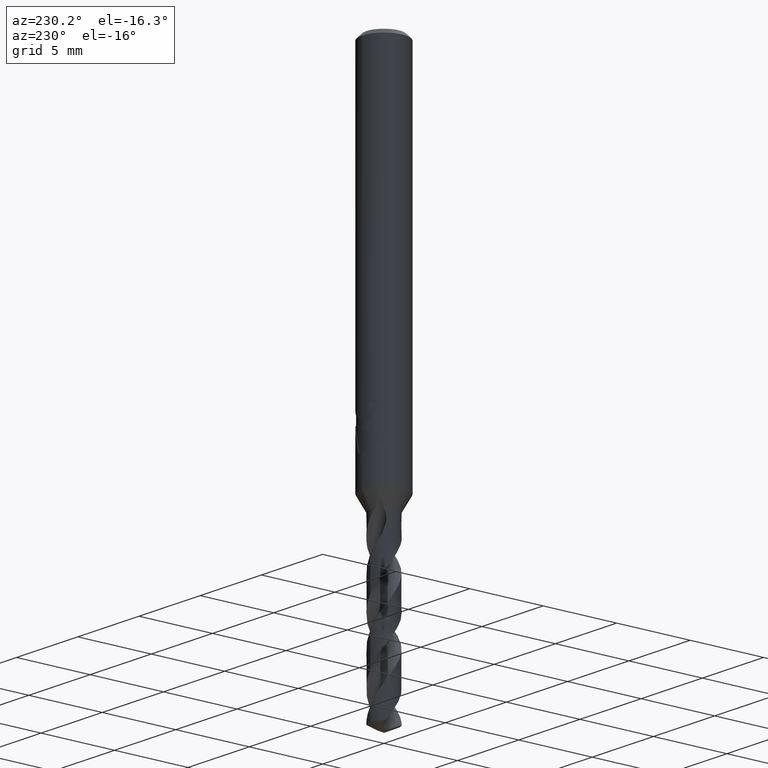
[diagram: clean part render]
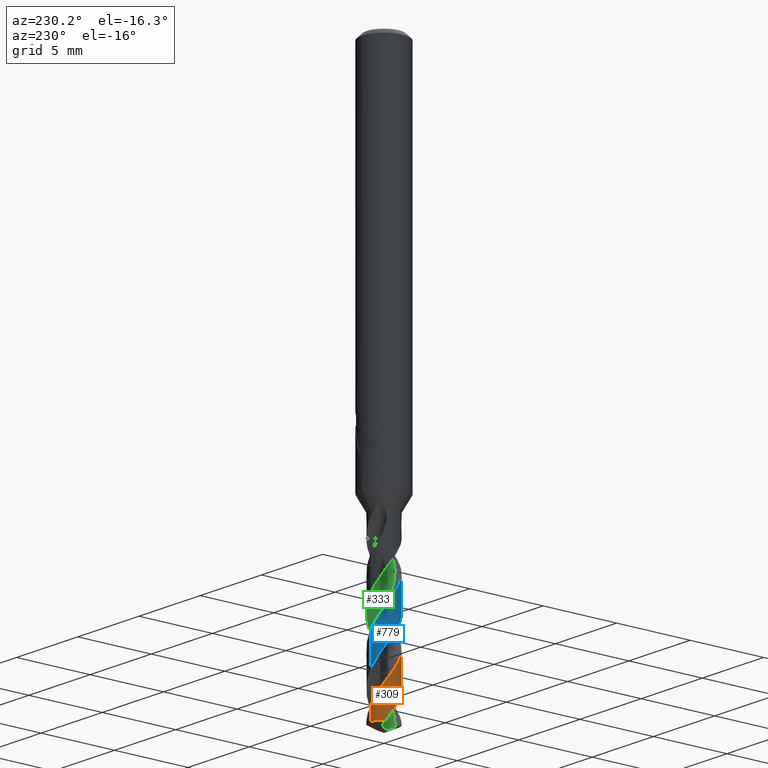
[diagram: same view with three faces highlighted in distinct colors, each labeled with its STEP entity id]
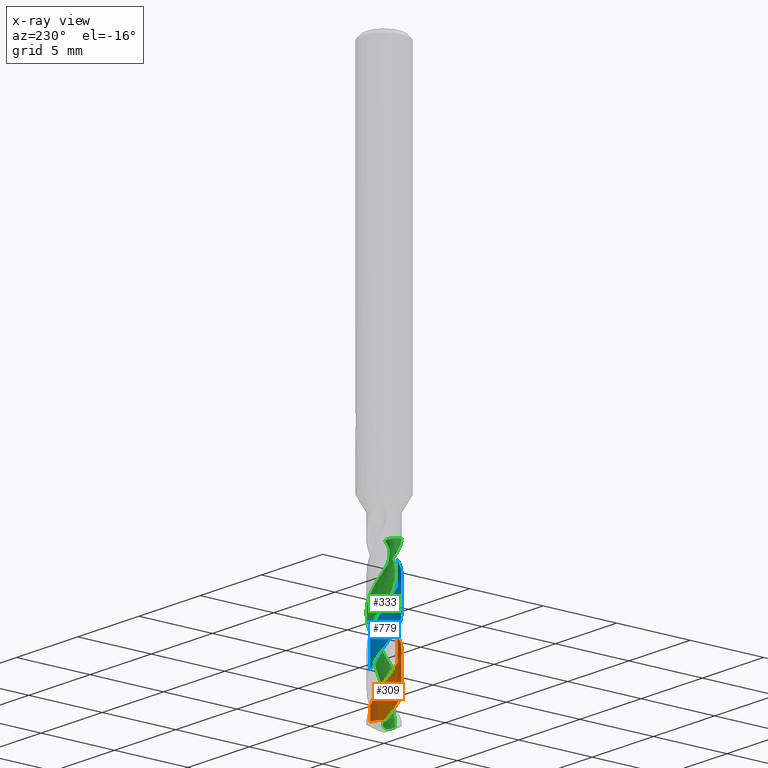
[diagram: x-ray of the same camera — body ghosted, the three highlighted faces saturated]
A machine part, auxiliary view with three faces highlighted in distinct colors.
The next image is the same camera in x-ray (body ghosted, the three faces saturated) — at least one of them is partly hidden behind the body in this view.
Their STEP definitions:

[orange] entity #309 — the highlighted conical surface has half-angle 0 deg.
#303=EDGE_CURVE('',#445,#551,#834,.T.);
#309=ADVANCED_FACE('',(#841),#842,.T.);
#397=VERTEX_POINT('',#937);
#405=EDGE_CURVE('',#595,#397,#945,.T.);
#445=VERTEX_POINT('',#989);
#551=VERTEX_POINT('',#1112);
#555=EDGE_CURVE('',#551,#595,#1116,.T.);
#595=VERTEX_POINT('',#1159);
#641=EDGE_CURVE('',#771,#445,#1210,.T.);
#653=EDGE_CURVE('',#771,#397,#1224,.T.);
#771=VERTEX_POINT('',#1346);
#834=LINE('',#1410,#1411);
#841=FACE_OUTER_BOUND('',#1418,.T.);
#842=CONICAL_SURFACE('',#1419,0.92495,8.64403942890488E-006);
#937=CARTESIAN_POINT('',(-1.13235198844314E-016,0.925,-37.5686654162066));
#945=LINE('',#2853,#2854);
#989=CARTESIAN_POINT('',(-1.57640211201324E-014,-0.924975379347989,-34.7203845617481));
#1112=CARTESIAN_POINT('',(9.54906268963072E-015,-0.924956570194606,-32.544416539254));
#1116=B_SPLINE_CURVE_WITH_KNOTS('',3,(#3668,#3669,#3670,#3671,#3672,#3673,#3674,#3675,#3676,#3677,#3678,#3679,#3680,#3681,#3682,#3683,#3684,#3685,#3686,#3687,#3688,#3689,#3690,#3691,#3692,#3693,#3694,#3695,#3696,#3697,#3698,#3699,#3700,#3701,#3702,#3703,#3704,#3705,#3706,#3707,#3708,#3709,#3710,#3711,#3712,#3713,#3714,#3715,#3716,#3717,#3718,#3719,#3720,#3721,#3722,#3723,#3724,#3725,#3726,#3727,#3728,#3729,#3730,#3731,#3732,#3733,#3734,#3735,#3736,#3737,#3738,#3739,#3740,#3741,#3742,#3743,#3744,#3745,#3746,#3747,#3748,#3749,#3750,#3751,#3752,#3753,#3754,#3755,#3756,#3757,#3758,#3759),.UNSPECIFIED.,.F.,.F.,(4,2,2,2,2,2,2,2,2,2,2,2,2,2,2,2,2,2,2,2,2,2,2,2,2,2,2,2,2,2,2,2,2,2,2,2,2,2,2,2,2,2,2,2,2,4),(0.0,0.0472198724156275,0.0574025585988011,0.0735373589944597,0.0868469578147238,0.218038330925236,0.261691917425566,0.289044876037018,0.314351082022974,0.347731999752369,0.384652818550665,0.456731164636487,0.577930901387958,0.665369081069344,0.761272563627483,0.868852537507182,1.13142299266356,1.3893205713174,1.94142634812594,2.21493816884625,2.59325546690577,3.11005719066375,3.42902150599256,4.06135874111993,4.12153041437067,4.54978737189091,5.09998388676573,5.4738184775308,6.04042352390591,6.31233732178689,6.73123920761243,7.09755838906936,7.66420867449292,7.93565158695013,8.50201483571727,8.77416916662612,9.17621107738449,9.52846106033087,10.0689661386032,10.5930693686041,10.7136336535823,11.2022319223759,11.3697445153659,11.5020738008468,11.9560763186827,12.5428964926617),.UNSPECIFIED.);
#1159=CARTESIAN_POINT('',(1.77525086546442E-015,0.924992254571094,-36.6726226609567));
#1210=B_SPLINE_CURVE_WITH_KNOTS('',3,(#4386,#4387,#4388,#4389,#4390,#4391,#4392,#4393,#4394,#4395,#4396,#4397,#4398,#4399,#4400,#4401,#4402,#4403,#4404,#4405,#4406,#4407,#4408,#4409,#4410,#4411,#4412,#4413,#4414,#4415,#4416,#4417,#4418,#4419,#4420,#4421,#4422,#4423,#4424,#4425,#4426,#4427,#4428,#4429,#4430,#4431,#4432,#4433,#4434,#4435,#4436,#4437,#4438,#4439,#4440,#4441,#4442,#4443,#4444,#4445,#4446,#4447,#4448,#4449,#4450,#4451,#4452,#4453,#4454,#4455,#4456,#4457,#4458,#4459,#4460,#4461,#4462,#4463),.UNSPECIFIED.,.F.,.F.,(4,2,2,2,2,2,2,2,2,2,2,2,2,2,2,2,2,2,2,2,2,2,2,2,2,2,2,2,2,2,2,2,2,2,2,2,2,2,4),(0.0,0.175575967483407,0.360828519637265,1.05434292440179,1.14884404924697,1.83973465104834,2.04112506437747,2.49938006891364,2.93639938058061,3.47251715162707,3.67386598879262,4.13394250026721,4.57152571054487,5.10815653482272,5.3094364092529,5.77050128383466,6.20751828654117,6.74469875994367,6.94654488156738,7.40809844461004,7.84943071826753,8.38713962228877,8.58765551902284,9.04980390933968,9.48430551018312,10.0217875504075,10.2183175494183,10.6105977177886,11.5362222229963,11.6507061963167,11.9174526162616,12.0692040540498,12.1504385621285,12.1848521311968,12.2009557795079,12.2184245282053,12.2468275341913,12.3092312574853,12.3409704273469),.UNSPECIFIED.);
#1224=CIRCLE('',#4501,0.925);
#1346=CARTESIAN_POINT('',(-0.765392373126085,0.519422289818621,-37.5686654162066));
#1410=CARTESIAN_POINT('',(1.13310853581057E-016,-0.92495,-31.7843327081033));
#1411=VECTOR('',#5276,1.0);
#1418=EDGE_LOOP('',(#5288,#5289,#5290,#5291,#5292));
#1419=AXIS2_PLACEMENT_3D('',#5293,#5294,#5295);
#2853=CARTESIAN_POINT('',(-1.13229075812545E-016,0.92495,-31.7843327081033));
#2854=VECTOR('',#5393,1.0);
#3668=CARTESIAN_POINT('',(-0.642884402266188,0.664952704088734,-27.4036));
#3669=CARTESIAN_POINT('',(-0.636670730165102,0.670960316391446,-27.4167546620883));
#3670=CARTESIAN_POINT('',(-0.630350256358006,0.67690301454452,-27.4298787435213));
#3671=CARTESIAN_POINT('',(-0.622513291081315,0.684064234623559,-27.4458071380207));
#3672=CARTESIAN_POINT('',(-0.621117586353023,0.685331803956415,-27.4486309819793));
#3673=CARTESIAN_POINT('',(-0.617495499692122,0.688601152104588,-27.4559255978359));
#3674=CARTESIAN_POINT('',(-0.615261021044669,0.690598479941639,-27.4603930347511));
#3675=CARTESIAN_POINT('',(-0.611156279522339,0.694231685787327,-27.4685392535946));
#3676=CARTESIAN_POINT('',(-0.609291234578439,0.695869186866264,-27.4722182010397));
#3677=CARTESIAN_POINT('',(-0.588932405692458,0.713599020072485,-27.5121325448191));
#3678=CARTESIAN_POINT('',(-0.569763122637151,0.72902141740793,-27.5475022625071));
#3679=CARTESIAN_POINT('',(-0.542694634088262,0.749011768629707,-27.5948947724439));
#3680=CARTESIAN_POINT('',(-0.535847765295585,0.753926042573309,-27.6066853964897));
#3681=CARTESIAN_POINT('',(-0.524556278983058,0.761797105885027,-27.62585541594));
#3682=CARTESIAN_POINT('',(-0.520174454788551,0.764796016318364,-27.6332293865475));
#3683=CARTESIAN_POINT('',(-0.511675445658822,0.770505548745826,-27.6474224329969));
#3684=CARTESIAN_POINT('',(-0.50756612464125,0.773218842834186,-27.6542365232574));
#3685=CARTESIAN_POINT('',(-0.497978296690814,0.779439921706756,-27.6700398633283));
#3686=CARTESIAN_POINT('',(-0.492486996155658,0.782921255253133,-27.6790199642961));
#3687=CARTESIAN_POINT('',(-0.480845125680768,0.790130902352223,-27.69794677403));
#3688=CARTESIAN_POINT('',(-0.474694750648278,0.79384108432924,-27.7078814418758));
#3689=CARTESIAN_POINT('',(-0.456435780075119,0.804568377221626,-27.7372622572185));
#3690=CARTESIAN_POINT('',(-0.444399518742374,0.8112755145366,-27.7565300328133));
#3691=CARTESIAN_POINT('',(-0.411652810285195,0.828583345838041,-27.8087957694151));
#3692=CARTESIAN_POINT('',(-0.390805705821822,0.838611878489407,-27.8418200201207));
#3693=CARTESIAN_POINT('',(-0.354495598078162,0.854446511540525,-27.8985650815735));
#3694=CARTESIAN_POINT('',(-0.339105796968457,0.860670355726312,-27.9223870446336));
#3695=CARTESIAN_POINT('',(-0.306504362572777,0.872844770888473,-27.9722755420396));
#3696=CARTESIAN_POINT('',(-0.289233034878584,0.878720844418237,-27.998378165705));
#3697=CARTESIAN_POINT('',(-0.252162383823672,0.8901165071468,-28.053649205187));
#3698=CARTESIAN_POINT('',(-0.232429246558341,0.895472436446772,-28.0825878672667));
#3699=CARTESIAN_POINT('',(-0.16372580207604,0.911688680434731,-28.1825469534367));
#3700=CARTESIAN_POINT('',(-0.114172098634031,0.919206851970246,-28.2531396566983));
#3701=CARTESIAN_POINT('',(-0.0152924772569948,0.92609755756376,-28.3937981092479));
#3702=CARTESIAN_POINT('',(0.0338357886199798,0.925600421004032,-28.4636831503436));
#3703=CARTESIAN_POINT('',(0.187138305220065,0.911849044562764,-28.6827271906496));
#3704=CARTESIAN_POINT('',(0.289323050138143,0.884757401959039,-28.8306400647897));
#3705=CARTESIAN_POINT('',(0.432064761519302,0.819458942260101,-29.0538007638436));
#3706=CARTESIAN_POINT('',(0.477480313542136,0.793860955012065,-29.1275455143443));
#3707=CARTESIAN_POINT('',(0.580082359671583,0.724007681722649,-29.3035869687641));
#3708=CARTESIAN_POINT('',(0.634606866700481,0.676706862912562,-29.4052434790236));
#3709=CARTESIAN_POINT('',(0.749245689383231,0.551148821933265,-29.6473687795934));
#3710=CARTESIAN_POINT('',(0.803576547962933,0.468464102853354,-29.7863562174944));
#3711=CARTESIAN_POINT('',(0.868757700484219,0.323197503723491,-30.0121131588665));
#3712=CARTESIAN_POINT('',(0.888078314516539,0.265513840191621,-30.0979862297574));
#3713=CARTESIAN_POINT('',(0.928431434379578,0.0892679862510242,-30.3553159321356));
#3714=CARTESIAN_POINT('',(0.93219028646482,-0.0321193600559469,-30.5244616178842));
#3715=CARTESIAN_POINT('',(0.910676638238996,-0.162218026287217,-30.7115660098881));
#3716=CARTESIAN_POINT('',(0.908598654855706,-0.1734796969771,-30.7278176167929));
#3717=CARTESIAN_POINT('',(0.890039556475661,-0.264554064396912,-30.8598817345518));
#3718=CARTESIAN_POINT('',(0.863270473417153,-0.341955221675735,-30.9756975795723));
#3719=CARTESIAN_POINT('',(0.779711810565607,-0.508477070219455,-31.240337045137));
#3720=CARTESIAN_POINT('',(0.717194356817612,-0.593382826283504,-31.3874862946092));
#3721=CARTESIAN_POINT('',(0.59068787997688,-0.7153116511591,-31.6376120581109));
#3722=CARTESIAN_POINT('',(0.533931355636477,-0.758633780802431,-31.7385007522336));
#3723=CARTESIAN_POINT('',(0.37987198764259,-0.850231787457208,-31.9927900795739));
#3724=CARTESIAN_POINT('',(0.278175874857021,-0.888692444940991,-32.1449226222386));
#3725=CARTESIAN_POINT('',(0.121455010548402,-0.918404163312662,-32.3718772431715));
#3726=CARTESIAN_POINT('',(0.0698662955930078,-0.923768374746017,-32.4452948500491));
#3727=CARTESIAN_POINT('',(-0.0617835571839415,-0.926339159320913,-32.6320823676187));
#3728=CARTESIAN_POINT('',(-0.141386235035712,-0.917553694320935,-32.7447008564965));
#3729=CARTESIAN_POINT('',(-0.286484303339447,-0.882231027760396,-32.9572925253586));
#3730=CARTESIAN_POINT('',(-0.352174050325807,-0.858138513497487,-33.0561954993765));
#3731=CARTESIAN_POINT('',(-0.511144249346738,-0.778430780907939,-33.3085233630822));
#3732=CARTESIAN_POINT('',(-0.598395011227115,-0.713516404453187,-33.4606276056042));
#3733=CARTESIAN_POINT('',(-0.707888020591442,-0.597599036022,-33.6875182141192));
#3734=CARTESIAN_POINT('',(-0.740178683596487,-0.557115228863901,-33.760832491909));
#3735=CARTESIAN_POINT('',(-0.82895093039006,-0.424341302743008,-33.98741583347));
#3736=CARTESIAN_POINT('',(-0.872734610868655,-0.324837602078122,-34.1395649820977));
#3737=CARTESIAN_POINT('',(-0.910715335400118,-0.169862821941198,-34.3665623190429));
#3738=CARTESIAN_POINT('',(-0.918808401552097,-0.118569080969152,-34.4400535213077));
#3739=CARTESIAN_POINT('',(-0.928095288797629,0.00963901682689748,-34.6223827456016));
#3740=CARTESIAN_POINT('',(-0.924102458439165,0.0863921058908723,-34.7305290914561));
#3741=CARTESIAN_POINT('',(-0.899020657006569,0.227672880479583,-34.9347935197988));
#3742=CARTESIAN_POINT('',(-0.880160019034551,0.29225309170606,-35.0299608850695));
#3743=CARTESIAN_POINT('',(-0.81497725877575,0.44946306057372,-35.2714892664324));
#3744=CARTESIAN_POINT('',(-0.759919170325105,0.537298485389085,-35.4165075929337));
#3745=CARTESIAN_POINT('',(-0.625419027793685,0.688759985332269,-35.7048247708395));
#3746=CARTESIAN_POINT('',(-0.5475181047893,0.752200881146139,-35.845427876094));
#3747=CARTESIAN_POINT('',(-0.440952003423929,0.813443260269214,-36.0197770871207));
#3748=CARTESIAN_POINT('',(-0.420622782102551,0.824138264206631,-36.0523720862388));
#3749=CARTESIAN_POINT('',(-0.316070052987289,0.874272599660482,-36.2172814791223));
#3750=CARTESIAN_POINT('',(-0.226522935476013,0.901651235563029,-36.349205532892));
#3751=CARTESIAN_POINT('',(-0.102726561780543,0.919823949094376,-36.5267361935184));
#3752=CARTESIAN_POINT('',(-0.0708968772566565,0.922823785888538,-36.5720018894069));
#3753=CARTESIAN_POINT('',(-0.0137514794720239,0.925234259875631,-36.6531208492062));
#3754=CARTESIAN_POINT('',(0.0114803641533593,0.925264707867472,-36.6888847095104));
#3755=CARTESIAN_POINT('',(0.123103499461302,0.920837147397805,-36.8476634408108));
#3756=CARTESIAN_POINT('',(0.208713001580583,0.90529478479211,-36.9704412021974));
#3757=CARTESIAN_POINT('',(0.397231888959025,0.842831008895011,-37.2522297671258));
#3758=CARTESIAN_POINT('',(0.496101034791826,0.788651822689225,-37.4095489596582));
#3759=CARTESIAN_POINT('',(0.582802735768863,0.718307713435076,-37.5686654162066));
#4386=CARTESIAN_POINT('',(-0.765392373126077,0.519422289818628,-37.5686654162066));
#4387=CARTESIAN_POINT('',(-0.784380514245954,0.491441664775331,-37.5208977651017));
#4388=CARTESIAN_POINT('',(-0.801760341295626,0.462529020245994,-37.4731786771706));
#4389=CARTESIAN_POINT('',(-0.834075052266888,0.401494554542396,-37.3747006775858));
#4390=CARTESIAN_POINT('',(-0.848779109689974,0.369376924693896,-37.3238397194558));
#4391=CARTESIAN_POINT('',(-0.909650441252868,0.213519169049546,-37.0843601114549));
#4392=CARTESIAN_POINT('',(-0.930761006824049,0.081833145517457,-36.9022410137425));
#4393=CARTESIAN_POINT('',(-0.922677466227845,-0.067825225344651,-36.6879730509918));
#4394=CARTESIAN_POINT('',(-0.921189630960614,-0.0856921400871874,-36.6622317248832));
#4395=CARTESIAN_POINT('',(-0.904467341840633,-0.234112718170188,-36.4486096806985));
#4396=CARTESIAN_POINT('',(-0.862153668971779,-0.359927810945876,-36.2671658081043));
#4397=CARTESIAN_POINT('',(-0.775439272220971,-0.505727395788765,-36.0251069974624));
#4398=CARTESIAN_POINT('',(-0.753887360091403,-0.537330935480969,-35.9701649772583));
#4399=CARTESIAN_POINT('',(-0.676789641835937,-0.636529680927817,-35.7910329870737));
#4400=CARTESIAN_POINT('',(-0.613667365540601,-0.697627859202509,-35.6686075170079));
#4401=CARTESIAN_POINT('',(-0.475043882933733,-0.798064293359826,-35.4262369160602));
#4402=CARTESIAN_POINT('',(-0.401238563304383,-0.837578457689832,-35.3067460512441));
#4403=CARTESIAN_POINT('',(-0.227409102194366,-0.902394506885881,-35.0431808064986));
#4404=CARTESIAN_POINT('',(-0.126518375863453,-0.921927598684651,-34.9009925125175));
#4405=CARTESIAN_POINT('',(0.0135443819800152,-0.925666846886415,-34.7010999689809));
#4406=CARTESIAN_POINT('',(0.0517352942340215,-0.924321039179398,-34.6462148564654));
#4407=CARTESIAN_POINT('',(0.17698717760256,-0.912093044311954,-34.4667734430077));
#4408=CARTESIAN_POINT('',(0.262599415354246,-0.891256566430043,-34.3439838862737));
#4409=CARTESIAN_POINT('',(0.421754644889559,-0.827453400346205,-34.1012057543262));
#4410=CARTESIAN_POINT('',(0.494563018933097,-0.786079290629975,-33.9816806438132));
#4411=CARTESIAN_POINT('',(0.642109174867698,-0.673576254361054,-33.7180831338707));
#4412=CARTESIAN_POINT('',(0.712431609455361,-0.598645620721339,-33.5759001447056));
#4413=CARTESIAN_POINT('',(0.790253967921364,-0.48219925921522,-33.3760813699421));
#4414=CARTESIAN_POINT('',(0.809457486562476,-0.44922070479811,-33.3212680944611));
#4415=CARTESIAN_POINT('',(0.865943166288335,-0.336713957656503,-33.1417541599808));
#4416=CARTESIAN_POINT('',(0.89400266421746,-0.253085425388874,-33.0188265619808));
#4417=CARTESIAN_POINT('',(0.92485701093348,-0.0845115996319373,-32.7761784329239));
#4418=CARTESIAN_POINT('',(0.9286864923871,-0.00105166720539927,-32.6569309123923));
#4419=CARTESIAN_POINT('',(0.912298884554183,0.183571280817511,-32.3936029212844));
#4420=CARTESIAN_POINT('',(0.886458177835745,0.283031326593944,-32.2514168457903));
#4421=CARTESIAN_POINT('',(0.829479429253446,0.411054091152078,-32.0515027378663));
#4422=CARTESIAN_POINT('',(0.811802217314022,0.444951180083269,-31.996590898884));
#4423=CARTESIAN_POINT('',(0.746745123314115,0.552795840972705,-31.8169867691596));
#4424=CARTESIAN_POINT('',(0.690983517679638,0.621138288228978,-31.6940627707563));
#4425=CARTESIAN_POINT('',(0.564327978697935,0.737656893685178,-31.4503852561294));
#4426=CARTESIAN_POINT('',(0.495114875582405,0.785762831888346,-31.3300880827043));
#4427=CARTESIAN_POINT('',(0.329356362325842,0.87033959523926,-31.0657427500609));
#4428=CARTESIAN_POINT('',(0.231380860076274,0.901306147951423,-30.923575976157));
#4429=CARTESIAN_POINT('',(0.0929652889194511,0.921040290544388,-30.7240762808489));
#4430=CARTESIAN_POINT('',(0.055146235225142,0.924078246036475,-30.669584768398));
#4431=CARTESIAN_POINT('',(-0.0705464558005802,0.926402604411889,-30.4903238549706));
#4432=CARTESIAN_POINT('',(-0.158125361920438,0.915561211992701,-30.3673286968484));
#4433=CARTESIAN_POINT('',(-0.322883147070974,0.870689100059278,-30.1255065060748));
#4434=CARTESIAN_POINT('',(-0.399240396852471,0.838404284254932,-30.0071551471059));
#4435=CARTESIAN_POINT('',(-0.558204427237585,0.744532836770209,-29.7449189415004));
#4436=CARTESIAN_POINT('',(-0.63677052028786,0.678502401754916,-29.6029748559154));
#4437=CARTESIAN_POINT('',(-0.727053777750531,0.572948795365038,-29.4047685869626));
#4438=CARTESIAN_POINT('',(-0.749440541083381,0.543336583704735,-29.3513946818611));
#4439=CARTESIAN_POINT('',(-0.81114364044669,0.450603828280862,-29.1923342801842));
#4440=CARTESIAN_POINT('',(-0.844796493592417,0.383914187315116,-29.0875521962244));
#4441=CARTESIAN_POINT('',(-0.929904437242054,0.147782053517256,-28.7329990284718));
#4442=CARTESIAN_POINT('',(-0.940798776286985,-0.0322440150980965,-28.4829320896216));
#4443=CARTESIAN_POINT('',(-0.897594461114115,-0.224206389454463,-28.2048875994176));
#4444=CARTESIAN_POINT('',(-0.892079880811979,-0.245244617892753,-28.174344433493));
#4445=CARTESIAN_POINT('',(-0.87115837485319,-0.314871322001895,-28.0728464966181));
#4446=CARTESIAN_POINT('',(-0.852820978634037,-0.361508246244426,-28.004838639618));
#4447=CARTESIAN_POINT('',(-0.818199552864892,-0.432244456269941,-27.8924042402705));
#4448=CARTESIAN_POINT('',(-0.804730022389549,-0.456755589349851,-27.8515353878899));
#4449=CARTESIAN_POINT('',(-0.782955603323387,-0.492608387633457,-27.7876544691509));
#4450=CARTESIAN_POINT('',(-0.775196456284431,-0.504716413859467,-27.7652769208217));
#4451=CARTESIAN_POINT('',(-0.763955298439189,-0.521417214350769,-27.7331188333753));
#4452=CARTESIAN_POINT('',(-0.757830120620223,-0.530460106101639,-27.7154775182281));
#4453=CARTESIAN_POINT('',(-0.744854341588777,-0.548369048911237,-27.6818536544981));
#4454=CARTESIAN_POINT('',(-0.740596588016028,-0.554108386699102,-27.6712123559034));
#4455=CARTESIAN_POINT('',(-0.73143697240903,-0.566152208057524,-27.649160394558));
#4456=CARTESIAN_POINT('',(-0.726519786968877,-0.572451921450062,-27.6377819250309));
#4457=CARTESIAN_POINT('',(-0.713169262703485,-0.589092371101308,-27.6081173739492));
#4458=CARTESIAN_POINT('',(-0.704489464232067,-0.599460206376982,-27.5900274460271));
#4459=CARTESIAN_POINT('',(-0.675238722420766,-0.632808396337531,-27.5329110059883));
#4460=CARTESIAN_POINT('',(-0.653116479568569,-0.655760899213054,-27.4952229239384));
#4461=CARTESIAN_POINT('',(-0.616086237058925,-0.690065503139813,-27.439898127328));
#4462=CARTESIAN_POINT('',(-0.603039171720868,-0.70151244602804,-27.4216055231112));
#4463=CARTESIAN_POINT('',(-0.589400108508059,-0.712790267500028,-27.4036));
#4501=AXIS2_PLACEMENT_3D('',#5764,#5765,#5766);
#5276=DIRECTION('',(-1.05855456071962E-021,8.64403942879723E-006,0.99999999996264));
#5288=ORIENTED_EDGE('',*,*,#405,.T.);
#5289=ORIENTED_EDGE('',*,*,#653,.F.);
#5290=ORIENTED_EDGE('',*,*,#641,.T.);
#5291=ORIENTED_EDGE('',*,*,#303,.T.);
#5292=ORIENTED_EDGE('',*,*,#555,.T.);
#5293=CARTESIAN_POINT('',(0.0,0.0,-31.7843327081033));
#5294=DIRECTION('',(0.0,-0.0,-1.0));
#5295=DIRECTION('',(0.0,1.0,0.0));
#5393=DIRECTION('',(-1.05855456071962E-021,8.64403942879723E-006,-0.99999999996264));
#5764=CARTESIAN_POINT('',(0.0,0.0,-37.5686654162066));
#5765=DIRECTION('',(0.0,0.0,-1.0));
#5766=DIRECTION('',(0.0,1.0,0.0));

[blue] entity #779 — the highlighted conical surface has half-angle 0 deg.
#325=VERTEX_POINT('',#858);
#341=EDGE_CURVE('',#683,#727,#875,.T.);
#427=VERTEX_POINT('',#970);
#597=EDGE_CURVE('',#727,#325,#1161,.T.);
#613=EDGE_CURVE('',#427,#683,#1180,.T.);
#657=EDGE_CURVE('',#325,#427,#1228,.T.);
#683=VERTEX_POINT('',#1255);
#727=VERTEX_POINT('',#1300);
#779=ADVANCED_FACE('',(#1356),#1357,.T.);
#858=CARTESIAN_POINT('',(-9.8243710128972E-015,-0.924939684406462,-30.5909562061072));
#875=LINE('',#1967,#1968);
#970=CARTESIAN_POINT('',(3.18089912591738E-014,-0.924920880447816,-28.4155891454584));
#1161=B_SPLINE_CURVE_WITH_KNOTS('',3,(#3948,#3949,#3950,#3951,#3952,#3953,#3954,#3955,#3956,#3957,#3958,#3959,#3960,#3961,#3962,#3963,#3964,#3965,#3966,#3967,#3968,#3969,#3970,#3971,#3972,#3973,#3974,#3975,#3976,#3977,#3978,#3979,#3980,#3981,#3982,#3983,#3984,#3985,#3986,#3987,#3988,#3989,#3990,#3991,#3992,#3993,#3994,#3995,#3996,#3997,#3998,#3999,#4000,#4001,#4002,#4003,#4004,#4005,#4006,#4007,#4008,#4009,#4010,#4011,#4012,#4013,#4014,#4015,#4016,#4017,#4018,#4019,#4020,#4021,#4022,#4023,#4024,#4025),.UNSPECIFIED.,.F.,.F.,(4,2,2,2,2,2,2,2,2,2,2,2,2,2,2,2,2,2,2,2,2,2,2,2,2,2,2,2,2,2,2,2,2,2,2,2,2,2,4),(0.0,0.175575967498542,0.360828519478574,1.05434292255817,1.14884404777667,1.83973464778452,2.04112506220054,2.49938006816865,2.93639938622632,3.47251715777154,3.67386599290652,4.13394250316937,4.57152570850511,5.10815653292086,5.3094364090775,5.77050128530134,6.20751829246539,6.74469876623538,6.94654488725072,7.40809844879235,7.84943071925,8.3871396234596,8.58765552124518,9.04980391125373,9.48430552195443,10.0217875624723,10.2183175586294,10.6105977311638,11.5362222291659,11.6507062022349,11.9174526200369,12.0692040576392,12.1504385658655,12.1848521361453,12.2009557850324,12.218424534362,12.2468275413846,12.3092312670282,12.3409704378504),.UNSPECIFIED.);
#1180=B_SPLINE_CURVE_WITH_KNOTS('',3,(#4138,#4139,#4140,#4141,#4142,#4143,#4144,#4145,#4146,#4147,#4148,#4149,#4150,#4151,#4152,#4153,#4154,#4155,#4156,#4157,#4158,#4159,#4160,#4161,#4162,#4163,#4164,#4165,#4166,#4167,#4168,#4169,#4170,#4171,#4172,#4173,#4174,#4175,#4176,#4177,#4178,#4179,#4180,#4181,#4182,#4183,#4184,#4185,#4186,#4187,#4188,#4189,#4190,#4191,#4192,#4193,#4194,#4195,#4196,#4197,#4198,#4199,#4200,#4201,#4202,#4203,#4204,#4205,#4206,#4207,#4208,#4209,#4210,#4211,#4212,#4213,#4214,#4215,#4216,#4217,#4218,#4219,#4220,#4221,#4222,#4223,#4224,#4225,#4226,#4227,#4228,#4229),.UNSPECIFIED.,.F.,.F.,(4,2,2,2,2,2,2,2,2,2,2,2,2,2,2,2,2,2,2,2,2,2,2,2,2,2,2,2,2,2,2,2,2,2,2,2,2,2,2,2,2,2,2,2,2,4),(0.0,0.0472198723982483,0.0574025586129521,0.0735373590386242,0.086846957736826,0.218038330745357,0.261691917204657,0.289044875786619,0.314351081743116,0.347731999434583,0.38465281818207,0.456731164138061,0.577930900790909,0.665369080380014,0.761272562820777,0.868852536537242,1.13142299141288,1.38932056889502,1.94142634502425,2.21493816542565,2.59325546582288,3.11005719064309,3.42902150272813,4.06135873815261,4.12153041123564,4.54978736992714,5.09998388409196,5.47381847869797,6.04042352439801,6.31233732223757,6.73123919419814,7.09755836358704,7.66420864868376,7.93565156013013,8.50201480850518,8.77416913846713,9.1762110815161,9.52846108662162,10.0689661573329,10.5930693893988,10.7136336676005,11.2022319711822,11.36974455639,11.5020738266503,11.956076389131,12.5428964801662),.UNSPECIFIED.);
#1228=LINE('',#4506,#4507);
#1255=CARTESIAN_POINT('',(-9.88212959703078E-015,0.924956570194605,-32.544416539254));
#1300=CARTESIAN_POINT('',(1.6430154934895E-014,0.924975379347988,-34.7203845617481));
#1356=FACE_OUTER_BOUND('',#5233,.T.);
#1357=CONICAL_SURFACE('',#5234,0.92495,8.64403942890488E-006);
#1967=CARTESIAN_POINT('',(-1.13310853606079E-016,0.92495,-31.7843327081033));
#1968=VECTOR('',#5311,1.0);
#3948=CARTESIAN_POINT('',(0.765392373126077,-0.519422289818627,-37.5686654162066));
#3949=CARTESIAN_POINT('',(0.784380514247591,-0.491441664772919,-37.5208977650976));
#3950=CARTESIAN_POINT('',(0.801760341298683,-0.462529020240874,-37.4731786771621));
#3951=CARTESIAN_POINT('',(0.834075052254815,-0.401494554564502,-37.3747006776217));
#3952=CARTESIAN_POINT('',(0.848779109665413,-0.369376924747079,-37.32383971954));
#3953=CARTESIAN_POINT('',(0.909650441113357,-0.213519169443103,-37.0843601120505));
#3954=CARTESIAN_POINT('',(0.930761006716102,-0.0818331462465088,-36.9022410147496));
#3955=CARTESIAN_POINT('',(0.922677466299594,0.0678252243879808,-36.6879730523665));
#3956=CARTESIAN_POINT('',(0.921189631044293,0.0856921392008494,-36.6622317261582));
#3957=CARTESIAN_POINT('',(0.904467342095256,0.234112716960245,-36.448609682445));
#3958=CARTESIAN_POINT('',(0.862153669552173,0.359927809416848,-36.2671658103587));
#3959=CARTESIAN_POINT('',(0.775439273209969,0.505727394287139,-36.0251070000383));
#3960=CARTESIAN_POINT('',(0.753887361033258,0.537330934171917,-35.9701649795628));
#3961=CARTESIAN_POINT('',(0.676789642705819,0.636529680029753,-35.7910329888305));
#3962=CARTESIAN_POINT('',(0.613667366341773,0.697627858523507,-35.668607518485));
#3963=CARTESIAN_POINT('',(0.475043882724221,0.798064293605595,-35.4262369156211));
#3964=CARTESIAN_POINT('',(0.401238562023327,0.837578458419493,-35.3067460491545));
#3965=CARTESIAN_POINT('',(0.227409099607857,0.902394507541183,-35.0431808027575));
#3966=CARTESIAN_POINT('',(0.126518373206019,0.921927599049064,-34.9009925087592));
#3967=CARTESIAN_POINT('',(-0.0135443842239926,0.925666846836106,-34.7010999657655));
#3968=CARTESIAN_POINT('',(-0.0517352960644762,0.924321039060561,-34.6462148538446));
#3969=CARTESIAN_POINT('',(-0.176987178772398,0.91209304406096,-34.4667734413281));
#3970=CARTESIAN_POINT('',(-0.262599416249737,0.891256566140638,-34.3439838849488));
#3971=CARTESIAN_POINT('',(-0.421754644597107,0.827453400397262,-34.1012057547331));
#3972=CARTESIAN_POINT('',(-0.494563017818746,0.786079291227331,-33.9816806456056));
#3973=CARTESIAN_POINT('',(-0.642109173230414,0.673576255918907,-33.7180831370391));
#3974=CARTESIAN_POINT('',(-0.712431607998869,0.598645622455958,-33.5759001478793));
#3975=CARTESIAN_POINT('',(-0.790253966929606,0.482199260866015,-33.3760813727008));
#3976=CARTESIAN_POINT('',(-0.809457485789412,0.449220706216457,-33.3212680967693));
#3977=CARTESIAN_POINT('',(-0.865943165917025,0.336713958674217,-33.1417541615013));
#3978=CARTESIAN_POINT('',(-0.894002664012377,0.253085426200221,-33.0188265631593));
#3979=CARTESIAN_POINT('',(-0.924857011022342,0.0845115994394349,-32.7761784326368));
#3980=CARTESIAN_POINT('',(-0.92868649245956,0.0010516662091582,-32.6569309109765));
#3981=CARTESIAN_POINT('',(-0.91229888419972,-0.183571282582862,-32.3936029187602));
#3982=CARTESIAN_POINT('',(-0.886458177288607,-0.283031328303463,-32.251416843275));
#3983=CARTESIAN_POINT('',(-0.829479428524753,-0.411054092608912,-32.0515027355334));
#3984=CARTESIAN_POINT('',(-0.811802216592632,-0.44495118138851,-31.9965908967525));
#3985=CARTESIAN_POINT('',(-0.746745122658854,-0.55279584180876,-31.8169867676707));
#3986=CARTESIAN_POINT('',(-0.690983517157953,-0.621138288764363,-31.6940627697022));
#3987=CARTESIAN_POINT('',(-0.564327978826589,-0.737656893513796,-31.4503852564251));
#3988=CARTESIAN_POINT('',(-0.495114876271323,-0.785762831385403,-31.3300880839133));
#3989=CARTESIAN_POINT('',(-0.329356363733435,-0.870339594705546,-31.0657427521712));
#3990=CARTESIAN_POINT('',(-0.231380861533836,-0.901306147578169,-30.9235759782654));
#3991=CARTESIAN_POINT('',(-0.092965290213835,-0.921040290421541,-30.7240762827117));
#3992=CARTESIAN_POINT('',(-0.0551462363420279,-0.924078245976952,-30.6695847699962));
#3993=CARTESIAN_POINT('',(0.070546454734379,-0.926402604481755,-30.4903238564789));
#3994=CARTESIAN_POINT('',(0.158125360750212,-0.915561212184012,-30.36732869851));
#3995=CARTESIAN_POINT('',(0.322883147617352,-0.870689100030256,-30.1255065053255));
#3996=CARTESIAN_POINT('',(0.39924039905627,-0.838404283386813,-30.0071551437473));
#3997=CARTESIAN_POINT('',(0.558204430619525,-0.744532834237145,-29.7449189355787));
#3998=CARTESIAN_POINT('',(0.636770523360065,-0.678502398866895,-29.6029748500079));
#3999=CARTESIAN_POINT('',(0.727053779955913,-0.572948792529293,-29.4047685818148));
#4000=CARTESIAN_POINT('',(0.749440542849017,-0.543336581233159,-29.3513946775145));
#4001=CARTESIAN_POINT('',(0.811143642118129,-0.450603825405646,-29.1923342754664));
#4002=CARTESIAN_POINT('',(0.844796495363684,-0.383914183574037,-29.0875521904075));
#4003=CARTESIAN_POINT('',(0.929904437573281,-0.147782049829723,-28.7329990234062));
#4004=CARTESIAN_POINT('',(0.940798775969694,0.0322440173726759,-28.4829320863451));
#4005=CARTESIAN_POINT('',(0.897594460879294,0.224206390390812,-28.2048875980591));
#4006=CARTESIAN_POINT('',(0.892079880566107,0.245244618783504,-28.1743444321979));
#4007=CARTESIAN_POINT('',(0.87115837466461,0.314871322460574,-28.0728464959415));
#4008=CARTESIAN_POINT('',(0.852820978564851,0.361508246357305,-28.0048386394204));
#4009=CARTESIAN_POINT('',(0.818199552977871,0.432244456055311,-27.8924042406219));
#4010=CARTESIAN_POINT('',(0.804730022516641,0.456755589124895,-27.8515353882718));
#4011=CARTESIAN_POINT('',(0.782955603452119,0.492608387429901,-27.7876544695237));
#4012=CARTESIAN_POINT('',(0.775196456395363,0.50471641369002,-27.7652769211405));
#4013=CARTESIAN_POINT('',(0.763955298415356,0.521417214388152,-27.7331188333065));
#4014=CARTESIAN_POINT('',(0.757830120601282,0.530460106128628,-27.7154775181767));
#4015=CARTESIAN_POINT('',(0.744854341569095,0.548369048938007,-27.6818536544483));
#4016=CARTESIAN_POINT('',(0.740596587997576,0.554108386723738,-27.671212355858));
#4017=CARTESIAN_POINT('',(0.731436972390864,0.56615220808101,-27.6491603945154));
#4018=CARTESIAN_POINT('',(0.726519786947513,0.572451921477228,-27.637781924982));
#4019=CARTESIAN_POINT('',(0.713169262673191,0.589092371138201,-27.6081173738842));
#4020=CARTESIAN_POINT('',(0.704489464191559,0.59946020642504,-27.5900274459434));
#4021=CARTESIAN_POINT('',(0.675238722313121,0.632808396456147,-27.532911005788));
#4022=CARTESIAN_POINT('',(0.653116479417904,0.655760899366488,-27.4952229236873));
#4023=CARTESIAN_POINT('',(0.616086236916864,0.690065503264373,-27.4398981271289));
#4024=CARTESIAN_POINT('',(0.603039171646072,0.701512446089887,-27.4216055230125));
#4025=CARTESIAN_POINT('',(0.589400108508059,0.712790267500028,-27.4036));
#4138=CARTESIAN_POINT('',(0.642884402266188,-0.664952704088734,-27.4036));
#4139=CARTESIAN_POINT('',(0.636670730167389,-0.670960316389235,-27.4167546620834));
#4140=CARTESIAN_POINT('',(0.630350256363287,-0.676903014539543,-27.4298787435103));
#4141=CARTESIAN_POINT('',(0.622513291085962,-0.684064234619346,-27.4458071380113));
#4142=CARTESIAN_POINT('',(0.621117586351333,-0.685331803957977,-27.4486309819827));
#4143=CARTESIAN_POINT('',(0.617495499677036,-0.688601152118165,-27.4559255978662));
#4144=CARTESIAN_POINT('',(0.615261021023809,-0.690598479960258,-27.4603930347927));
#4145=CARTESIAN_POINT('',(0.611156279511777,-0.69423168579655,-27.4685392536153));
#4146=CARTESIAN_POINT('',(0.609291234582837,-0.695869186862352,-27.4722182010309));
#4147=CARTESIAN_POINT('',(0.588932405707068,-0.713599020060686,-27.512132544792));
#4148=CARTESIAN_POINT('',(0.569763122647016,-0.729021417400453,-27.5475022624895));
#4149=CARTESIAN_POINT('',(0.542694634092185,-0.749011768626875,-27.5948947724372));
#4150=CARTESIAN_POINT('',(0.535847765299091,-0.753926042570833,-27.6066853964837));
#4151=CARTESIAN_POINT('',(0.52455627898528,-0.761797105883497,-27.6258554159362));
#4152=CARTESIAN_POINT('',(0.520174454790984,-0.764796016316716,-27.6332293865435));
#4153=CARTESIAN_POINT('',(0.511675445660537,-0.770505548744691,-27.6474224329941));
#4154=CARTESIAN_POINT('',(0.507566124642924,-0.773218842833083,-27.6542365232546));
#4155=CARTESIAN_POINT('',(0.497978296693273,-0.77943992170518,-27.6700398633243));
#4156=CARTESIAN_POINT('',(0.49248699615854,-0.782921255251314,-27.6790199642914));
#4157=CARTESIAN_POINT('',(0.480845125686128,-0.790130902348939,-27.6979467740213));
#4158=CARTESIAN_POINT('',(0.474694750655511,-0.793841084324896,-27.7078814418642));
#4159=CARTESIAN_POINT('',(0.456435780093565,-0.80456837721098,-27.7372622571889));
#4160=CARTESIAN_POINT('',(0.44439951876956,-0.811275514521527,-27.7565300327697));
#4161=CARTESIAN_POINT('',(0.411652810317654,-0.828583345822062,-27.8087957693636));
#4162=CARTESIAN_POINT('',(0.390805705849596,-0.838611878476652,-27.841820020077));
#4163=CARTESIAN_POINT('',(0.354495598099065,-0.854446511531871,-27.8985650815411));
#4164=CARTESIAN_POINT('',(0.339105796988886,-0.860670355718271,-27.9223870446021));
#4165=CARTESIAN_POINT('',(0.306504362594994,-0.872844770880619,-27.9722755420058));
#4166=CARTESIAN_POINT('',(0.28923303490341,-0.878720844410013,-27.9983781656676));
#4167=CARTESIAN_POINT('',(0.252162383859663,-0.890116507136401,-28.0536492051337));
#4168=CARTESIAN_POINT('',(0.232429246603116,-0.895472436434946,-28.0825878672011));
#4169=CARTESIAN_POINT('',(0.163725802129522,-0.911688680425173,-28.1825469533601));
#4170=CARTESIAN_POINT('',(0.114172098686781,-0.919206851963723,-28.2531396566232));
#4171=CARTESIAN_POINT('',(0.0152924774792318,-0.926097557551066,-28.3937981089318));
#4172=CARTESIAN_POINT('',(-0.0338357882271308,-0.92560042100938,-28.4636831497853));
#4173=CARTESIAN_POINT('',(-0.187138304649561,-0.911849044677926,-28.682727189828));
#4174=CARTESIAN_POINT('',(-0.289323049568507,-0.884757402143378,-28.8306400639428));
#4175=CARTESIAN_POINT('',(-0.432064760973752,-0.819458942547438,-29.053800762969));
#4176=CARTESIAN_POINT('',(-0.47748031300969,-0.793860955332012,-29.1275455134643));
#4177=CARTESIAN_POINT('',(-0.580082359614853,-0.724007681820136,-29.3035869686202));
#4178=CARTESIAN_POINT('',(-0.634606867034171,-0.676706862654977,-29.4052434796138));
#4179=CARTESIAN_POINT('',(-0.749245690148246,-0.551148820948002,-29.6473687813657));
#4180=CARTESIAN_POINT('',(-0.803576548775586,-0.468464101524314,-29.786356219687));
#4181=CARTESIAN_POINT('',(-0.868757700906004,-0.323197502485947,-30.0121131607113));
#4182=CARTESIAN_POINT('',(-0.888078314697722,-0.265513839459661,-30.0979862308302));
#4183=CARTESIAN_POINT('',(-0.928431434440351,-0.0892679858678862,-30.3553159326868));
#4184=CARTESIAN_POINT('',(-0.932190286468774,0.0321193606304813,-30.524461618685));
#4185=CARTESIAN_POINT('',(-0.9106766381107,0.162218027006106,-30.7115660109244));
#4186=CARTESIAN_POINT('',(-0.908598654722256,0.173479697674763,-30.7278176178016));
#4187=CARTESIAN_POINT('',(-0.890039556216944,0.264554065361956,-30.8598817359725));
#4188=CARTESIAN_POINT('',(-0.863270472960172,0.341955222903574,-30.9756975814263));
#4189=CARTESIAN_POINT('',(-0.779711809688741,0.508477071559505,-31.2403370473917));
#4190=CARTESIAN_POINT('',(-0.717194355809263,0.593382827497883,-31.3874862968421));
#4191=CARTESIAN_POINT('',(-0.590687878203269,0.715311652703752,-31.6376120614551));
#4192=CARTESIAN_POINT('',(-0.53393135308635,0.758633782673307,-31.7385007567061));
#4193=CARTESIAN_POINT('',(-0.379871984014234,0.85023178907695,-31.9927900851639));
#4194=CARTESIAN_POINT('',(-0.278175871075139,0.888692446123607,-32.1449226278485));
#4195=CARTESIAN_POINT('',(-0.121455006602374,0.918404163837313,-32.371877248822));
#4196=CARTESIAN_POINT('',(-0.0698662915752576,0.92376837505265,-32.4452948557599));
#4197=CARTESIAN_POINT('',(0.0617835587058118,0.926339158999107,-32.6320823697621));
#4198=CARTESIAN_POINT('',(0.141386233983722,0.917553694261432,-32.7447008550625));
#4199=CARTESIAN_POINT('',(0.286484297785731,0.882231029388376,-32.9572925171277));
#4200=CARTESIAN_POINT('',(0.352174042840417,0.858138516387603,-33.0561954880277));
#4201=CARTESIAN_POINT('',(0.511144240782312,0.77843078653719,-33.3085233486645));
#4202=CARTESIAN_POINT('',(0.598395003409461,0.713516411015554,-33.4606275911541));
#4203=CARTESIAN_POINT('',(0.707888013969335,0.597599043853701,-33.6875181995588));
#4204=CARTESIAN_POINT('',(0.74017867733634,0.557115237167617,-33.7608324771687));
#4205=CARTESIAN_POINT('',(0.828950925577923,0.424341312150787,-33.9874158186039));
#4206=CARTESIAN_POINT('',(0.872734607195676,0.324837611954639,-34.1395649671797));
#4207=CARTESIAN_POINT('',(0.910715333451356,0.169862832348588,-34.3665623040157));
#4208=CARTESIAN_POINT('',(0.918808400172845,0.118569091599295,-34.440053506118));
#4209=CARTESIAN_POINT('',(0.928095289360575,-0.00963901217360585,-34.6223827390907));
#4210=CARTESIAN_POINT('',(0.924102458800276,-0.0863921075357697,-34.7305290936682));
#4211=CARTESIAN_POINT('',(0.899020654343474,-0.227672892256932,-34.9347935369721));
#4212=CARTESIAN_POINT('',(0.880160014167414,-0.292253107355013,-35.0299609082657));
#4213=CARTESIAN_POINT('',(0.814977249253361,-0.449463077540138,-35.2714892937967));
#4214=CARTESIAN_POINT('',(0.759919159739436,-0.537298500107906,-35.4165076186263));
#4215=CARTESIAN_POINT('',(0.625419015014679,-0.688759997009473,-35.7048247953229));
#4216=CARTESIAN_POINT('',(0.547518090427442,-0.752200891662551,-35.8454279011459));
#4217=CARTESIAN_POINT('',(0.440951988558066,-0.81344326829193,-36.0197771110845));
#4218=CARTESIAN_POINT('',(0.420622768177745,-0.824138271278082,-36.0523721084301));
#4219=CARTESIAN_POINT('',(0.316070033441488,-0.874272607434882,-36.2172815090275));
#4220=CARTESIAN_POINT('',(0.226522908713135,-0.901651242981324,-36.3492055720578));
#4221=CARTESIAN_POINT('',(0.102726529137062,-0.919823952689885,-36.5267362400613));
#4222=CARTESIAN_POINT('',(0.07089684596898,-0.922823788241661,-36.5720019338703));
#4223=CARTESIAN_POINT('',(0.0137514524681485,-0.92523426019837,-36.6531208874993));
#4224=CARTESIAN_POINT('',(-0.0114803882577565,-0.925264707489735,-36.688884743738));
#4225=CARTESIAN_POINT('',(-0.123103529075962,-0.920837144238837,-36.8476634831414));
#4226=CARTESIAN_POINT('',(-0.208713039172987,-0.905294776949889,-36.9704412564362));
#4227=CARTESIAN_POINT('',(-0.397231916660742,-0.842830993752988,-37.2522298110565));
#4228=CARTESIAN_POINT('',(-0.496101047000617,-0.788651812783807,-37.409548982064));
#4229=CARTESIAN_POINT('',(-0.582802735768863,-0.718307713435076,-37.5686654162066));
#4506=CARTESIAN_POINT('',(1.13229075787522E-016,-0.92495,-31.7843327081033));
#4507=VECTOR('',#5767,1.0);
#5233=EDGE_LOOP('',(#5869,#5870,#5871,#5872));
#5234=AXIS2_PLACEMENT_3D('',#5873,#5874,#5875);
#5311=DIRECTION('',(-1.05855456071962E-021,8.64403942879723E-006,-0.99999999996264));
#5767=DIRECTION('',(-1.05855456071962E-021,8.64403942879723E-006,0.99999999996264));
#5869=ORIENTED_EDGE('',*,*,#341,.T.);
#5870=ORIENTED_EDGE('',*,*,#597,.T.);
#5871=ORIENTED_EDGE('',*,*,#657,.T.);
#5872=ORIENTED_EDGE('',*,*,#613,.T.);
#5873=CARTESIAN_POINT('',(0.0,0.0,-31.7843327081033));
#5874=DIRECTION('',(0.0,-0.0,-1.0));
#5875=DIRECTION('',(0.0,1.0,0.0));

[green] entity #333 — the highlighted face is a freeform B-spline surface patch.
#333=ADVANCED_FACE('',(#866),#867,.F.);
#337=VERTEX_POINT('',#871);
#363=VERTEX_POINT('',#898);
#415=VERTEX_POINT('',#956);
#439=EDGE_CURVE('',#445,#681,#983,.T.);
#445=VERTEX_POINT('',#989);
#465=EDGE_CURVE('',#363,#415,#1012,.T.);
#579=EDGE_CURVE('',#681,#651,#1142,.T.);
#639=EDGE_CURVE('',#415,#337,#1208,.T.);
#641=EDGE_CURVE('',#771,#445,#1210,.T.);
#651=VERTEX_POINT('',#1222);
#681=VERTEX_POINT('',#1253);
#703=EDGE_CURVE('',#651,#363,#1276,.T.);
#761=EDGE_CURVE('',#337,#771,#1336,.T.);
#771=VERTEX_POINT('',#1346);
#866=FACE_OUTER_BOUND('',#1478,.T.);
#867=B_SPLINE_SURFACE_WITH_KNOTS('',3,3,((#1479,#1480,#1481,#1482,#1483,#1484,#1485,#1486,#1487,#1488,#1489,#1490,#1491,#1492,#1493,#1494,#1495,#1496,#1497,#1498,#1499,#1500,#1501,#1502,#1503,#1504,#1505,#1506,#1507,#1508,#1509,#1510,#1511,#1512,#1513,#1514,#1515,#1516,#1517,#1518,#1519,#1520,#1521,#1522,#1523,#1524,#1525,#1526,#1527,#1528,#1529,#1530,#1531),(#1532,#1533,#1534,#1535,#1536,#1537,#1538,#1539,#1540,#1541,#1542,#1543,#1544,#1545,#1546,#1547,#1548,#1549,#1550,#1551,#1552,#1553,#1554,#1555,#1556,#1557,#1558,#1559,#1560,#1561,#1562,#1563,#1564,#1565,#1566,#1567,#1568,#1569,#1570,#1571,#1572,#1573,#1574,#1575,#1576,#1577,#1578,#1579,#1580,#1581,#1582,#1583,#1584),(#1585,#1586,#1587,#1588,#1589,#1590,#1591,#1592,#1593,#1594,#1595,#1596,#1597,#1598,#1599,#1600,#1601,#1602,#1603,#1604,#1605,#1606,#1607,#1608,#1609,#1610,#1611,#1612,#1613,#1614,#1615,#1616,#1617,#1618,#1619,#1620,#1621,#1622,#1623,#1624,#1625,#1626,#1627,#1628,#1629,#1630,#1631,#1632,#1633,#1634,#1635,#1636,#1637),(#1638,#1639,#1640,#1641,#1642,#1643,#1644,#1645,#1646,#1647,#1648,#1649,#1650,#1651,#1652,#1653,#1654,#1655,#1656,#1657,#1658,#1659,#1660,#1661,#1662,#1663,#1664,#1665,#1666,#1667,#1668,#1669,#1670,#1671,#1672,#1673,#1674,#1675,#1676,#1677,#1678,#1679,#1680,#1681,#1682,#1683,#1684,#1685,#1686,#1687,#1688,#1689,#1690),(#1691,#1692,#1693,#1694,#1695,#1696,#1697,#1698,#1699,#1700,#1701,#1702,#1703,#1704,#1705,#1706,#1707,#1708,#1709,#1710,#1711,#1712,#1713,#1714,#1715,#1716,#1717,#1718,#1719,#1720,#1721,#1722,#1723,#1724,#1725,#1726,#1727,#1728,#1729,#1730,#1731,#1732,#1733,#1734,#1735,#1736,#1737,#1738,#1739,#1740,#1741,#1742,#1743),(#1744,#1745,#1746,#1747,#1748,#1749,#1750,#1751,#1752,#1753,#1754,#1755,#1756,#1757,#1758,#1759,#1760,#1761,#1762,#1763,#1764,#1765,#1766,#1767,#1768,#1769,#1770,#1771,#1772,#1773,#1774,#1775,#1776,#1777,#1778,#1779,#1780,#1781,#1782,#1783,#1784,#1785,#1786,#1787,#1788,#1789,#1790,#1791,#1792,#1793,#1794,#1795,#1796),(#1797,#1798,#1799,#1800,#1801,#1802,#1803,#1804,#1805,#1806,#1807,#1808,#1809,#1810,#1811,#1812,#1813,#1814,#1815,#1816,#1817,#1818,#1819,#1820,#1821,#1822,#1823,#1824,#1825,#1826,#1827,#1828,#1829,#1830,#1831,#1832,#1833,#1834,#1835,#1836,#1837,#1838,#1839,#1840,#1841,#1842,#1843,#1844,#1845,#1846,#1847,#1848,#1849),(#1850,#1851,#1852,#1853,#1854,#1855,#1856,#1857,#1858,#1859,#1860,#1861,#1862,#1863,#1864,#1865,#1866,#1867,#1868,#1869,#1870,#1871,#1872,#1873,#1874,#1875,#1876,#1877,#1878,#1879,#1880,#1881,#1882,#1883,#1884,#1885,#1886,#1887,#1888,#1889,#1890,#1891,#1892,#1893,#1894,#1895,#1896,#1897,#1898,#1899,#1900,#1901,#1902),(#1903,#1904,#1905,#1906,#1907,#1908,#1909,#1910,#1911,#1912,#1913,#1914,#1915,#1916,#1917,#1918,#1919,#1920,#1921,#1922,#1923,#1924,#1925,#1926,#1927,#1928,#1929,#1930,#1931,#1932,#1933,#1934,#1935,#1936,#1937,#1938,#1939,#1940,#1941,#1942,#1943,#1944,#1945,#1946,#1947,#1948,#1949,#1950,#1951,#1952,#1953,#1954,#1955)),.UNSPECIFIED.,.F.,.F.,.F.,(4,1,1,1,1,1,4),(4,1,2,2,2,2,1,2,1,2,1,2,1,2,1,2,1,2,1,2,1,2,1,2,1,2,1,2,1,2,1,2,1,4),(-1.7374656412856E-016,0.589055375925862,1.17811075185172,1.76716612777759,2.35622150370345,2.74892508765402,3.1416286716046),(0.0,0.232383064868827,0.464766129737653,0.929532259475306,1.39429838921296,1.85906451895061,2.32383064868826,2.78859677842592,3.25336290816357,3.71812903790122,4.18289516763888,4.64766129737653,5.11242742711418,5.57719355685184,6.04195968658949,6.50672581632714,6.97149194606479,7.43625807580245,7.9010242055401,8.36579033527775,8.83055646501541,9.29532259475306,9.76008872449071,10.2248548542284,10.689620983966,11.1543871137037,11.6191532434413,12.083919373179,12.5486855029166,13.0134516326543,13.4782177623919,13.9429838921296,14.4077500218672,14.8725161516049),.UNSPECIFIED.);
#871=CARTESIAN_POINT('',(-0.435395623156242,-0.386193345179289,-37.7286126892552));
#898=CARTESIAN_POINT('',(0.0862127843489929,-0.283549462839842,-27.4036));
#956=CARTESIAN_POINT('',(0.436049184018015,-0.458117485981981,-27.4036));
#983=B_SPLINE_CURVE_WITH_KNOTS('',3,(#2985,#2986,#2987,#2988,#2989,#2990,#2991,#2992,#2993,#2994,#2995,#2996,#2997,#2998,#2999,#3000,#3001,#3002,#3003,#3004,#3005,#3006,#3007,#3008,#3009,#3010,#3011,#3012,#3013,#3014,#3015,#3016,#3017,#3018,#3019,#3020,#3021,#3022,#3023,#3024,#3025,#3026,#3027,#3028,#3029,#3030,#3031,#3032,#3033,#3034,#3035,#3036,#3037,#3038,#3039,#3040,#3041,#3042,#3043,#3044,#3045,#3046,#3047,#3048,#3049,#3050,#3051,#3052,#3053,#3054,#3055,#3056,#3057,#3058,#3059,#3060,#3061,#3062),.UNSPECIFIED.,.F.,.F.,(4,2,2,2,2,2,2,2,2,2,2,2,2,2,2,2,2,2,2,2,2,2,2,2,2,2,2,2,2,2,2,2,2,2,2,2,2,2,4),(0.0,0.175575967483407,0.360828519637265,1.05434292440179,1.14884404924697,1.83973465104834,2.04112506437747,2.49938006891364,2.93639938058061,3.47251715162707,3.67386598879262,4.13394250026721,4.57152571054487,5.10815653482272,5.3094364092529,5.77050128383466,6.20751828654117,6.74469875994367,6.94654488156738,7.40809844461004,7.84943071826753,8.38713962228877,8.58765551902284,9.04980390933968,9.48430551018312,10.0217875504075,10.2183175494183,10.6105977177886,11.5362222229963,11.6507061963167,11.9174526162616,12.0692040540498,12.1504385621285,12.1848521311968,12.2009557795079,12.2184245282053,12.2468275341913,12.3092312574853,12.3409704273469),.UNSPECIFIED.);
#989=CARTESIAN_POINT('',(-1.57640211201324E-014,-0.924975379347989,-34.7203845617481));
#1012=CIRCLE('',#3129,0.61666667);
#1142=B_SPLINE_CURVE_WITH_KNOTS('',3,(#3845,#3846,#3847,#3848,#3849,#3850,#3851,#3852,#3853,#3854,#3855,#3856,#3857,#3858,#3859,#3860,#3861,#3862,#3863,#3864,#3865,#3866,#3867,#3868,#3869,#3870,#3871,#3872,#3873,#3874,#3875,#3876,#3877,#3878,#3879,#3880,#3881,#3882,#3883,#3884,#3885,#3886,#3887,#3888,#3889,#3890,#3891,#3892,#3893,#3894,#3895,#3896,#3897,#3898,#3899,#3900,#3901,#3902,#3903,#3904,#3905,#3906,#3907,#3908,#3909,#3910,#3911,#3912,#3913,#3914,#3915,#3916,#3917,#3918,#3919,#3920,#3921,#3922),.UNSPECIFIED.,.F.,.F.,(4,2,2,2,2,2,2,2,2,2,2,2,2,2,2,2,2,2,2,2,2,2,2,2,2,2,2,2,2,2,2,2,2,2,2,2,2,2,4),(0.0,0.175575967483407,0.360828519637265,1.05434292440179,1.14884404924697,1.83973465104834,2.04112506437747,2.49938006891364,2.93639938058061,3.47251715162707,3.67386598879262,4.13394250026721,4.57152571054487,5.10815653482272,5.3094364092529,5.77050128383466,6.20751828654117,6.74469875994367,6.94654488156738,7.40809844461004,7.84943071826753,8.38713962228877,8.58765551902284,9.04980390933968,9.48430551018312,10.0217875504075,10.2183175494183,10.6105977177886,11.5362222229963,11.6507061963167,11.9174526162616,12.0692040540498,12.1504385621285,12.1848521311968,12.2009557795079,12.2184245282053,12.2468275341913,12.3092312574853,12.3409704273469),.UNSPECIFIED.);
#1208=B_SPLINE_CURVE_WITH_KNOTS('',3,(#4331,#4332,#4333,#4334,#4335,#4336,#4337,#4338,#4339,#4340,#4341,#4342,#4343,#4344,#4345,#4346,#4347,#4348,#4349,#4350,#4351,#4352,#4353,#4354,#4355,#4356,#4357,#4358,#4359,#4360,#4361,#4362,#4363,#4364,#4365,#4366,#4367,#4368,#4369,#4370,#4371,#4372,#4373,#4374,#4375,#4376,#4377,#4378,#4379,#4380,#4381,#4382,#4383),.UNSPECIFIED.,.F.,.F.,(4,1,2,2,2,2,1,2,1,2,1,2,1,2,1,2,1,2,1,2,1,2,1,2,1,2,1,2,1,2,1,2,1,4),(0.0,0.232383064868827,0.464766129737653,0.929532259475306,1.39429838921296,1.85906451895061,2.32383064868826,2.78859677842592,3.25336290816357,3.71812903790122,4.18289516763888,4.64766129737653,5.11242742711418,5.57719355685184,6.04195968658949,6.50672581632714,6.97149194606479,7.43625807580245,7.9010242055401,8.36579033527775,8.83055646501541,9.29532259475306,9.76008872449071,10.2248548542284,10.689620983966,11.1543871137037,11.6191532434413,12.083919373179,12.5486855029166,13.0134516326543,13.4782177623919,13.9429838921296,14.4077500218672,14.8725161516049),.UNSPECIFIED.);
#1210=B_SPLINE_CURVE_WITH_KNOTS('',3,(#4386,#4387,#4388,#4389,#4390,#4391,#4392,#4393,#4394,#4395,#4396,#4397,#4398,#4399,#4400,#4401,#4402,#4403,#4404,#4405,#4406,#4407,#4408,#4409,#4410,#4411,#4412,#4413,#4414,#4415,#4416,#4417,#4418,#4419,#4420,#4421,#4422,#4423,#4424,#4425,#4426,#4427,#4428,#4429,#4430,#4431,#4432,#4433,#4434,#4435,#4436,#4437,#4438,#4439,#4440,#4441,#4442,#4443,#4444,#4445,#4446,#4447,#4448,#4449,#4450,#4451,#4452,#4453,#4454,#4455,#4456,#4457,#4458,#4459,#4460,#4461,#4462,#4463),.UNSPECIFIED.,.F.,.F.,(4,2,2,2,2,2,2,2,2,2,2,2,2,2,2,2,2,2,2,2,2,2,2,2,2,2,2,2,2,2,2,2,2,2,2,2,2,2,4),(0.0,0.175575967483407,0.360828519637265,1.05434292440179,1.14884404924697,1.83973465104834,2.04112506437747,2.49938006891364,2.93639938058061,3.47251715162707,3.67386598879262,4.13394250026721,4.57152571054487,5.10815653482272,5.3094364092529,5.77050128383466,6.20751828654117,6.74469875994367,6.94654488156738,7.40809844461004,7.84943071826753,8.38713962228877,8.58765551902284,9.04980390933968,9.48430551018312,10.0217875504075,10.2183175494183,10.6105977177886,11.5362222229963,11.6507061963167,11.9174526162616,12.0692040540498,12.1504385621285,12.1848521311968,12.2009557795079,12.2184245282053,12.2468275341913,12.3092312574853,12.3409704273469),.UNSPECIFIED.);
#1222=CARTESIAN_POINT('',(-0.589400108508059,-0.712790267500028,-27.4036));
#1253=CARTESIAN_POINT('',(9.5468152567284E-015,0.924939684406463,-30.5909562061072));
#1276=CIRCLE('',#4970,0.61666667);
#1336=B_SPLINE_CURVE_WITH_KNOTS('',3,(#5190,#5191,#5192,#5193,#5194,#5195,#5196,#5197,#5198,#5199,#5200,#5201,#5202,#5203,#5204,#5205,#5206,#5207,#5208,#5209),.UNSPECIFIED.,.F.,.F.,(4,2,2,2,2,2,2,2,2,4),(0.0,0.335921174528712,0.617280993806063,0.945095798314894,1.31816019401063,1.7585285282031,2.2813482382569,2.89579744745316,3.60210681964727,4.34662836765792),.UNSPECIFIED.);
#1346=CARTESIAN_POINT('',(-0.765392373126085,0.519422289818621,-37.5686654162066));
#1478=EDGE_LOOP('',(#5300,#5301,#5302,#5303,#5304,#5305,#5306));
#1479=CARTESIAN_POINT('',(-0.436049184018018,-1.33021585401801,-27.4036));
#1480=CARTESIAN_POINT('',(-0.490641011605617,-1.32384594578388,-27.4586401066499));
#1481=CARTESIAN_POINT('',(-0.600847719778036,-1.30026195463468,-27.5697809515842));
#1482=CARTESIAN_POINT('',(-0.707909495900366,-1.24684140092777,-27.6812278171122));
#1483=CARTESIAN_POINT('',(-0.859151846995306,-1.13964674066815,-27.8457187030904));
#1484=CARTESIAN_POINT('',(-0.950321078307188,-1.05965668408763,-27.9548486449772));
#1485=CARTESIAN_POINT('',(-1.11608294002013,-0.889772337390613,-28.1770687220258));
#1486=CARTESIAN_POINT('',(-1.18802953269398,-0.793865918615728,-28.2880118086532));
#1487=CARTESIAN_POINT('',(-1.30283265699569,-0.583591214800348,-28.5082482337456));
#1488=CARTESIAN_POINT('',(-1.3474884248963,-0.471609680288934,-28.6185320538473));
#1489=CARTESIAN_POINT('',(-1.40634135980175,-0.239356787831511,-28.8395638248641));
#1490=CARTESIAN_POINT('',(-1.4372319577941,-0.000959788502445144,-29.0603848250969));
#1491=CARTESIAN_POINT('',(-1.40843953643918,0.237983973550078,-29.2815143619077));
#1492=CARTESIAN_POINT('',(-1.34731123357024,0.469739559949731,-29.5023017663111));
#1493=CARTESIAN_POINT('',(-1.25881039210906,0.693348540892654,-29.7228810475595));
#1494=CARTESIAN_POINT('',(-1.11810324247092,0.888746028640954,-29.9439653087376));
#1495=CARTESIAN_POINT('',(-0.952655999168427,1.06222473336281,-30.1648574491973));
#1496=CARTESIAN_POINT('',(-0.767153895499816,1.21528261235607,-30.3855186636245));
#1497=CARTESIAN_POINT('',(-0.549569937203083,1.31833043039658,-30.6066101273013));
#1498=CARTESIAN_POINT('',(-0.320919655624186,1.39026502085459,-30.8274715470545));
#1499=CARTESIAN_POINT('',(-0.0845692262840559,1.43465772357647,-31.0481113078575));
#1500=CARTESIAN_POINT('',(0.155729656173832,1.41978185896046,-31.2692014094115));
#1501=CARTESIAN_POINT('',(0.390686560868241,1.3723041348421,-31.4900690750099));
#1502=CARTESIAN_POINT('',(0.619075898336271,1.29698638017256,-31.7107137396177));
#1503=CARTESIAN_POINT('',(0.822280609982952,1.16786156943398,-31.9318051447233));
#1504=CARTESIAN_POINT('',(1.00505520308078,1.01277220488117,-32.1526722591409));
#1505=CARTESIAN_POINT('',(1.16862813132337,0.836482696049396,-32.3733151114613));
#1506=CARTESIAN_POINT('',(1.28416253024357,0.625257503345497,-32.5944050550798));
#1507=CARTESIAN_POINT('',(1.36927236260286,0.401172401215405,-32.8152723405736));
#1508=CARTESIAN_POINT('',(1.42732900327563,0.167799078678371,-33.0359168896575));
#1509=CARTESIAN_POINT('',(1.42643725695588,-0.0729586272516712,-33.2570079792875));
#1510=CARTESIAN_POINT('',(1.3926863921662,-0.310277241027481,-33.4778744288076));
#1511=CARTESIAN_POINT('',(1.3307622145918,-0.542655762010555,-33.6985172237145));
#1512=CARTESIAN_POINT('',(1.21366626532064,-0.75302059448158,-33.9196078311318));
#1513=CARTESIAN_POINT('',(1.06946672273682,-0.94450113940707,-34.1404757253032));
#1514=CARTESIAN_POINT('',(0.902985928882503,-1.11804571846209,-34.3611199752364));
#1515=CARTESIAN_POINT('',(0.698832141741806,-1.24566040502008,-34.5822104261527));
#1516=CARTESIAN_POINT('',(0.48006991951741,-1.3436466992686,-34.8030769021991));
#1517=CARTESIAN_POINT('',(0.25046293144459,-1.4151645786571,-35.0237203723811));
#1518=CARTESIAN_POINT('',(0.0100582908744266,-1.42826273045728,-35.2448104319524));
#1519=CARTESIAN_POINT('',(-0.228822705298802,-1.40835763020544,-35.465676076596));
#1520=CARTESIAN_POINT('',(-0.464408320737371,-1.36004323601434,-35.6863196346843));
#1521=CARTESIAN_POINT('',(-0.681221078103344,-1.25537649377807,-35.907415928019));
#1522=CARTESIAN_POINT('',(-0.880751535033152,-1.1225548450837,-36.1282920717795));
#1523=CARTESIAN_POINT('',(-1.06366340649448,-0.966441150725169,-36.3489339829457));
#1524=CARTESIAN_POINT('',(-1.20293324480722,-0.770054287904956,-36.5700004722434));
#1525=CARTESIAN_POINT('',(-1.31351675739057,-0.557364360483518,-36.7908362370829));
#1526=CARTESIAN_POINT('',(-1.39833447723216,-0.332280586966371,-37.011493766299));
#1527=CARTESIAN_POINT('',(-1.42526651929867,-0.0929803912692099,-37.232651670344));
#1528=CARTESIAN_POINT('',(-1.41894297749581,0.146662128448262,-37.4535795327477));
#1529=CARTESIAN_POINT('',(-1.38417959990483,0.384451108641236,-37.6741389861653));
#1530=CARTESIAN_POINT('',(-1.29306727951015,0.606845735793823,-37.895010146697));
#1531=CARTESIAN_POINT('',(-1.23330219860176,0.710427998311311,-38.0053475114472));
#1532=CARTESIAN_POINT('',(-0.521665483585571,-1.24459407637409,-27.4036));
#1533=CARTESIAN_POINT('',(-0.575613176216593,-1.23758008046435,-27.4586214747827));
#1534=CARTESIAN_POINT('',(-0.682663392313443,-1.21080049871082,-27.5699146566135));
#1535=CARTESIAN_POINT('',(-0.782037052676886,-1.15088732483165,-27.6815545531194));
#1536=CARTESIAN_POINT('',(-0.917501521322022,-1.03278224741557,-27.8457890995935));
#1537=CARTESIAN_POINT('',(-0.998798533797481,-0.94830076305749,-27.9546544143114));
#1538=CARTESIAN_POINT('',(-1.1467355330677,-0.772254093395513,-28.1771617765949));
#1539=CARTESIAN_POINT('',(-1.20898230776289,-0.674155119610133,-28.2882091830219));
#1540=CARTESIAN_POINT('',(-1.30304014181326,-0.462061194130311,-28.5083126952369));
#1541=CARTESIAN_POINT('',(-1.33747108834697,-0.35050154265356,-28.6185657662387));
#1542=CARTESIAN_POINT('',(-1.37599969976679,-0.121684484111793,-28.8396323630649));
#1543=CARTESIAN_POINT('',(-1.38758407778832,0.110824522936322,-29.0604438164619));
#1544=CARTESIAN_POINT('',(-1.34137696072261,0.339336375667177,-29.2816278100706));
#1545=CARTESIAN_POINT('',(-1.26393139092324,0.558155418694565,-29.5023984621519));
#1546=CARTESIAN_POINT('',(-1.16129920795486,0.767194160821777,-29.7229177213757));
#1547=CARTESIAN_POINT('',(-1.01040582723087,0.9450544700808,-29.9440473176666));
#1548=CARTESIAN_POINT('',(-0.836937165233126,1.09935134522797,-30.1649447103663));
#1549=CARTESIAN_POINT('',(-0.646101471252239,1.23283426712031,-30.3855630059744));
#1550=CARTESIAN_POINT('',(-0.428071317469079,1.31559793539175,-30.6067012207672));
#1551=CARTESIAN_POINT('',(-0.201665610980908,1.36686171527951,-30.8275614436364));
#1552=CARTESIAN_POINT('',(0.0298976168614706,1.39154212635222,-31.0481538069326));
#1553=CARTESIAN_POINT('',(0.260789602247227,1.35869346482625,-31.2692903974848));
#1554=CARTESIAN_POINT('',(0.48379500983366,1.2942012443212,-31.490158181961));
#1555=CARTESIAN_POINT('',(0.698469001554225,1.20393584030918,-31.7107564703194));
#1556=CARTESIAN_POINT('',(0.884752753629427,1.06361842153958,-31.931894635045));
#1557=CARTESIAN_POINT('',(1.04884141817208,0.899405409527573,-32.1527617440591));
#1558=CARTESIAN_POINT('',(1.19318342259598,0.716654945236486,-32.3733578468712));
#1559=CARTESIAN_POINT('',(1.28849694740527,0.503805508045769,-32.594494244497));
#1560=CARTESIAN_POINT('',(1.35284113843412,0.280759571325752,-32.815361562412));
#1561=CARTESIAN_POINT('',(1.39093996650907,0.0510194038272896,-33.0359597149478));
#1562=CARTESIAN_POINT('',(1.37155746015583,-0.181391136087675,-33.2570974964914));
#1563=CARTESIAN_POINT('',(1.32012499965717,-0.407766245148556,-33.4779638055195));
#1564=CARTESIAN_POINT('',(1.2424811760392,-0.627320483621231,-33.6985598384653));
#1565=CARTESIAN_POINT('',(1.11322924721743,-0.821444192187812,-33.9196970355971));
#1566=CARTESIAN_POINT('',(0.958836492804278,-0.994802194377386,-34.1405650918746));
#1567=CARTESIAN_POINT('',(0.784788163965959,-1.14952486909485,-34.3611628787955));
#1568=CARTESIAN_POINT('',(0.577837353598325,-1.25704666498963,-34.5822998885417));
#1569=CARTESIAN_POINT('',(0.358905660852794,-1.33424092297012,-34.8031662349031));
#1570=CARTESIAN_POINT('',(0.131766039652923,-1.38562273519557,-35.0237630874396));
#1571=CARTESIAN_POINT('',(-0.101379768186675,-1.37977600798935,-35.2448996250537));
#1572=CARTESIAN_POINT('',(-0.330363007241107,-1.34158315246926,-35.4657649454851));
#1573=CARTESIAN_POINT('',(-0.554059821828049,-1.27683133905263,-35.686361878073));
#1574=CARTESIAN_POINT('',(-0.755366549527129,-1.15908617260728,-35.907505948759));
#1575=CARTESIAN_POINT('',(-0.937398088194085,-1.01503552118367,-36.1283840269865));
#1576=CARTESIAN_POINT('',(-1.1019578420084,-0.850272161043735,-36.3489790739678));
#1577=CARTESIAN_POINT('',(-1.22133307118738,-0.649926252832945,-36.5700871070954));
#1578=CARTESIAN_POINT('',(-1.31117801282026,-0.435858432398956,-36.7909161391252));
#1579=CARTESIAN_POINT('',(-1.37575603133106,-0.212063479988012,-37.0115296369986));
#1580=CARTESIAN_POINT('',(-1.38332043918374,0.0210836160717291,-37.2327491454644));
#1581=CARTESIAN_POINT('',(-1.35811027057671,0.251872914522897,-37.4536921593917));
#1582=CARTESIAN_POINT('',(-1.30626316009927,0.478726631639288,-37.674191451416));
#1583=CARTESIAN_POINT('',(-1.20133242993698,0.686539280952576,-37.8950844237197));
#1584=CARTESIAN_POINT('',(-1.13551865708723,0.781839575238212,-38.0054199566702));
#1585=CARTESIAN_POINT('',(-0.640777236461975,-1.02162669933406,-27.4036));
#1586=CARTESIAN_POINT('',(-0.693047542659751,-1.01371663489713,-27.4585943375505));
#1587=CARTESIAN_POINT('',(-0.791854112366787,-0.982467466727397,-27.5701093964403));
#1588=CARTESIAN_POINT('',(-0.871932094631318,-0.914245887817524,-27.6820304409635));
#1589=CARTESIAN_POINT('',(-0.969260323255015,-0.783913786902192,-27.8458916306473));
#1590=CARTESIAN_POINT('',(-1.02811193245252,-0.696446467857032,-27.9543715194282));
#1591=CARTESIAN_POINT('',(-1.13670311080269,-0.518899059878593,-28.1772973095771));
#1592=CARTESIAN_POINT('',(-1.17824292701482,-0.422302113507125,-28.2884966571651));
#1593=CARTESIAN_POINT('',(-1.22975462775269,-0.219154744120385,-28.508406582219));
#1594=CARTESIAN_POINT('',(-1.24401529017753,-0.114638568460107,-28.6186148680858));
#1595=CARTESIAN_POINT('',(-1.24402558815671,0.094989365817263,-28.8397321881102));
#1596=CARTESIAN_POINT('',(-1.22061259720478,0.304027960515552,-29.0605297375779));
#1597=CARTESIAN_POINT('',(-1.14594236247704,0.501139138902755,-29.2817930445677));
#1598=CARTESIAN_POINT('',(-1.04374494876309,0.684219466122056,-29.5025393001439));
#1599=CARTESIAN_POINT('',(-0.921718500355765,0.855581469729715,-29.7229711359759));
#1600=CARTESIAN_POINT('',(-0.761111195824945,0.992230473241343,-29.9441667620925));
#1601=CARTESIAN_POINT('',(-0.583250662967708,1.10334332012675,-30.1650718060268));
#1602=CARTESIAN_POINT('',(-0.39363100566421,1.19448685507472,-30.3856275896544));
#1603=CARTESIAN_POINT('',(-0.187010463184095,1.23645826594589,-30.6068338976788));
#1604=CARTESIAN_POINT('',(0.0223757567414225,1.24778913186603,-30.8276923767935));
#1605=CARTESIAN_POINT('',(0.232421343394278,1.23599341553413,-31.0482157049095));
#1606=CARTESIAN_POINT('',(0.433621863922277,1.17294512777126,-31.2694200108484));
#1607=CARTESIAN_POINT('',(0.622433572834747,1.08171083177896,-31.4902879620962));
#1608=CARTESIAN_POINT('',(0.800643614202509,0.969901975410867,-31.7108187125621));
#1609=CARTESIAN_POINT('',(0.946336780061753,0.817486500715799,-31.9320249690576));
#1610=CARTESIAN_POINT('',(1.06756364836787,0.646378957904449,-32.1528920855613));
#1611=CARTESIAN_POINT('',(1.16956986561096,0.462383766336886,-32.3734200888313));
#1612=CARTESIAN_POINT('',(1.22350313018701,0.258552178629167,-32.5946241436459));
#1613=CARTESIAN_POINT('',(1.24699396399574,0.0501751850919938,-32.8154915173394));
#1614=CARTESIAN_POINT('',(1.24742632975129,-0.160203886959135,-33.0360220884285));
#1615=CARTESIAN_POINT('',(1.19616680634939,-0.364725877880718,-33.25722787527));
#1616=CARTESIAN_POINT('',(1.11604832376559,-0.558516404828089,-33.4780939838174));
#1617=CARTESIAN_POINT('',(1.01477845786898,-0.74291860286258,-33.6986219048324));
#1618=CARTESIAN_POINT('',(0.871091666947712,-0.897225613596356,-33.9198269619794));
#1619=CARTESIAN_POINT('',(0.707326059271504,-1.02819867555496,-34.1406952522935));
#1620=CARTESIAN_POINT('',(0.529574341260677,-1.14073159080982,-34.3612253680106));
#1621=CARTESIAN_POINT('',(0.329220905275055,-1.20641759024948,-34.582430189312));
#1622=CARTESIAN_POINT('',(0.122559670914024,-1.2419727995263,-34.8032963472695));
#1623=CARTESIAN_POINT('',(-0.0874396514030273,-1.25462507615811,-35.0238253049293));
#1624=CARTESIAN_POINT('',(-0.294595682916966,-1.21533413818707,-35.2450295266757));
#1625=CARTESIAN_POINT('',(-0.49271583306195,-1.14661015464331,-35.4658943892404));
#1626=CARTESIAN_POINT('',(-0.682694138952099,-1.05623109542889,-35.6864233979255));
#1627=CARTESIAN_POINT('',(-0.845093262531216,-0.921762510695905,-35.9076370702121));
#1628=CARTESIAN_POINT('',(-0.985357542826056,-0.765891617287791,-36.1285179515477));
#1629=CARTESIAN_POINT('',(-1.1080097830966,-0.594978199207584,-36.3490447594586));
#1630=CARTESIAN_POINT('',(-1.18524063314323,-0.398788050611741,-36.5702132752308));
#1631=CARTESIAN_POINT('',(-1.23282050898951,-0.194544204877919,-36.7910325301844));
#1632=CARTESIAN_POINT('',(-1.25774724743069,0.0144019877154079,-37.0115818734494));
#1633=CARTESIAN_POINT('',(-1.23035235107774,0.223511868468579,-37.2328911200106));
#1634=CARTESIAN_POINT('',(-1.17278123325581,0.425161583323425,-37.4538561958129));
#1635=CARTESIAN_POINT('',(-1.09343748490812,0.619809709053071,-37.6742678708889));
#1636=CARTESIAN_POINT('',(-0.969744704803551,0.790111978039405,-37.895192601673));
#1637=CARTESIAN_POINT('',(-0.896869927642352,0.865199239932285,-38.005525472363));
#1638=CARTESIAN_POINT('',(-0.60360379639425,-0.644148015634022,-27.4036000000001));
#1639=CARTESIAN_POINT('',(-0.653034334810017,-0.636517620388697,-27.4585975721432));
#1640=CARTESIAN_POINT('',(-0.737829774242597,-0.606560931827866,-27.5700861848734));
#1641=CARTESIAN_POINT('',(-0.786907870389952,-0.544050449189159,-27.6819737185578));
#1642=CARTESIAN_POINT('',(-0.826459122445216,-0.430241927020278,-27.8458794097685));
#1643=CARTESIAN_POINT('',(-0.854815374802801,-0.357752613953721,-27.9544052384632));
#1644=CARTESIAN_POINT('',(-0.913059662976497,-0.211120395478186,-28.1772811550085));
#1645=CARTESIAN_POINT('',(-0.930013004139801,-0.13365257812836,-28.2884623922969));
#1646=CARTESIAN_POINT('',(-0.935890362382796,0.0228763911320624,-28.5083953916167));
#1647=CARTESIAN_POINT('',(-0.930851803961818,0.101795433817824,-28.6186090161489));
#1648=CARTESIAN_POINT('',(-0.898789159454718,0.255381101644609,-28.8397202890456));
#1649=CARTESIAN_POINT('',(-0.851264370999531,0.405969190300479,-29.0605194962632));
#1650=CARTESIAN_POINT('',(-0.767244189367083,0.540179631089814,-29.2817733507496));
#1651=CARTESIAN_POINT('',(-0.663942817239007,0.658038667424599,-29.5025225123495));
#1652=CARTESIAN_POINT('',(-0.549112704345226,0.766225601645831,-29.7229647699676));
#1653=CARTESIAN_POINT('',(-0.410726245351684,0.84335600639708,-29.944152524871));
#1654=CARTESIAN_POINT('',(-0.263371412210213,0.896923564019662,-30.1650566574637));
#1655=CARTESIAN_POINT('',(-0.110551304489213,0.936248882446971,-30.3856198922175));
#1656=CARTESIAN_POINT('',(0.0478394599001426,0.936827127405663,-30.6068180823059));
#1657=CARTESIAN_POINT('',(0.202711855772335,0.912511890220893,-30.8276767717643));
#1658=CARTESIAN_POINT('',(0.355511273292584,0.873131888671463,-31.0482083272112));
#1659=CARTESIAN_POINT('',(0.494496737990761,0.797142543614309,-31.2694045604497));
#1660=CARTESIAN_POINT('',(0.618356595931967,0.701033354666229,-31.4902724946773));
#1661=CARTESIAN_POINT('',(0.73311396603467,0.592728401137634,-31.7108112919466));
#1662=CARTESIAN_POINT('',(0.818076342573822,0.459041562673325,-31.9320094363477));
#1663=CARTESIAN_POINT('',(0.880074491839949,0.315048368625415,-32.1528765476474));
#1664=CARTESIAN_POINT('',(0.928216382467038,0.1647791609381,-32.3734126710869));
#1665=CARTESIAN_POINT('',(0.938029677453319,0.00668288124514367,-32.594608660681));
#1666=CARTESIAN_POINT('',(0.922767125748982,-0.149346300987952,-32.8154760275908));
#1667=CARTESIAN_POINT('',(0.892332804338531,-0.304178242797835,-33.0360146533145));
#1668=CARTESIAN_POINT('',(0.824536764175646,-0.447337079581654,-33.2572123364312));
#1669=CARTESIAN_POINT('',(0.735776809850056,-0.576563705813749,-33.4780784661494));
#1670=CARTESIAN_POINT('',(0.634318928917493,-0.697414788188948,-33.6986145075868));
#1671=CARTESIAN_POINT('',(0.50579999667928,-0.790009381633208,-33.9198114758416));
#1672=CARTESIAN_POINT('',(0.365658886058011,-0.860283524649449,-34.140679737979));
#1673=CARTESIAN_POINT('',(0.218443520232694,-0.917085482587928,-34.3612179190725));
#1674=CARTESIAN_POINT('',(0.0611847047688621,-0.936066072766626,-34.5824146599034));
#1675=CARTESIAN_POINT('',(-0.0954668434628758,-0.929888808635177,-34.8032808373297));
#1676=CARTESIAN_POINT('',(-0.251804292296004,-0.908497252477116,-35.0238178894591));
#1677=CARTESIAN_POINT('',(-0.398660509551302,-0.849131965494951,-35.2450140440358));
#1678=CARTESIAN_POINT('',(-0.532827301410428,-0.768029620644059,-35.4658789597979));
#1679=CARTESIAN_POINT('',(-0.65937562823213,-0.673770834127127,-35.6864160661465));
#1680=CARTESIAN_POINT('',(-0.759289629761883,-0.550856864968459,-35.907621440301));
#1681=CARTESIAN_POINT('',(-0.837586291258569,-0.415041862906656,-36.128501989905));
#1682=CARTESIAN_POINT('',(-0.902820910850234,-0.271376616653729,-36.3490369277419));
#1683=CARTESIAN_POINT('',(-0.930926664250403,-0.11549157625406,-36.5701982406818));
#1684=CARTESIAN_POINT('',(-0.933954218875802,0.0412736486221587,-36.791018653445));
#1685=CARTESIAN_POINT('',(-0.921777389989235,0.198649277478886,-37.011575650173));
#1686=CARTESIAN_POINT('',(-0.87079049356017,0.348633249594281,-37.2328741955969));
#1687=CARTESIAN_POINT('',(-0.797121505430274,0.486955435104829,-37.4538366459483));
#1688=CARTESIAN_POINT('',(-0.710304643632481,0.618503566848774,-37.6742587615748));
#1689=CARTESIAN_POINT('',(-0.594458363917347,0.726365328936177,-37.8951797069135));
#1690=CARTESIAN_POINT('',(-0.529616635505943,0.770346509073738,-38.0055128956606));
#1691=CARTESIAN_POINT('',(-0.362977310179973,-0.350940042640659,-27.4036));
#1692=CARTESIAN_POINT('',(-0.410202056294692,-0.345119888980217,-27.4586436866954));
#1693=CARTESIAN_POINT('',(-0.484065688966884,-0.324022166170992,-27.5697552607795));
#1694=CARTESIAN_POINT('',(-0.51054275294979,-0.283482775032012,-27.6811650362637));
#1695=CARTESIAN_POINT('',(-0.511232933240775,-0.215512730924315,-27.8457051767735));
#1696=CARTESIAN_POINT('',(-0.522555276282914,-0.172419521906384,-27.9548859655977));
#1697=CARTESIAN_POINT('',(-0.556113239612028,-0.0794639093629139,-28.177050841928));
#1698=CARTESIAN_POINT('',(-0.563251936299697,-0.0315606163632334,-28.2879738841704));
#1699=CARTESIAN_POINT('',(-0.557085590562179,0.0608531408570958,-28.5082358476695));
#1700=CARTESIAN_POINT('',(-0.550221560490993,0.107766855538196,-28.618525576156));
#1701=CARTESIAN_POINT('',(-0.522627110406471,0.196936380842273,-28.8395506555731));
#1702=CARTESIAN_POINT('',(-0.487527866157366,0.285528919208665,-29.0603734900182));
#1703=CARTESIAN_POINT('',(-0.430679660698874,0.362245071803834,-29.2814925636702));
#1704=CARTESIAN_POINT('',(-0.362695730817656,0.425261456343535,-29.5022831863427));
#1705=CARTESIAN_POINT('',(-0.288947665664101,0.484918465762783,-29.7228740008474));
#1706=CARTESIAN_POINT('',(-0.202104152224851,0.524906637685124,-29.9439495514181));
#1707=CARTESIAN_POINT('',(-0.112084521088001,0.547575483862069,-30.164840682044));
#1708=CARTESIAN_POINT('',(-0.018650970081427,0.56426059128918,-30.3855101435647));
#1709=CARTESIAN_POINT('',(0.0766414083934026,0.557217192029861,-30.6065926241907));
#1710=CARTESIAN_POINT('',(0.166383315283596,0.533549986594564,-30.8274542737576));
#1711=CARTESIAN_POINT('',(0.256259256800247,0.503039128026867,-31.0481031422682));
#1712=CARTESIAN_POINT('',(0.336325377253715,0.450854940340027,-31.2691843100165));
#1713=CARTESIAN_POINT('',(0.403471619595679,0.386778105241273,-31.4900519542626));
#1714=CARTESIAN_POINT('',(0.467416850748659,0.316639291714506,-31.7107055277328));
#1715=CARTESIAN_POINT('',(0.512288917740247,0.232265208468317,-31.9317879515738));
#1716=CARTESIAN_POINT('',(0.540104479643964,0.143722698874271,-32.1526550630213));
#1717=CARTESIAN_POINT('',(0.562197279031758,0.0514212514871126,-32.3733069001473));
#1718=CARTESIAN_POINT('',(0.560735822860414,-0.0441357559618927,-32.594387919552));
#1719=CARTESIAN_POINT('',(0.542334321452499,-0.135109088035151,-32.8152551951997));
#1720=CARTESIAN_POINT('',(0.517095990328007,-0.226606627017349,-33.035908662458));
#1721=CARTESIAN_POINT('',(0.469642314260014,-0.309556896951572,-33.2569907778054));
#1722=CARTESIAN_POINT('',(0.409567396788843,-0.38029985396242,-33.4778572566428));
#1723=CARTESIAN_POINT('',(0.343260639527449,-0.448205804618476,-33.6985090341006));
#1724=CARTESIAN_POINT('',(0.261639172242956,-0.497915616874153,-33.9195906925156));
#1725=CARTESIAN_POINT('',(0.174863860358108,-0.530845875661216,-34.1404585523156));
#1726=CARTESIAN_POINT('',(0.0840012352113621,-0.558274618166736,-34.3611117319618));
#1727=CARTESIAN_POINT('',(-0.0114775389150863,-0.562363655747183,-34.5821932370816));
#1728=CARTESIAN_POINT('',(-0.103362198537897,-0.54927142435469,-34.8030597366144));
#1729=CARTESIAN_POINT('',(-0.19616762978573,-0.529386764916261,-35.0237121642961));
#1730=CARTESIAN_POINT('',(-0.281733873853608,-0.486831492328251,-35.2447932957881));
#1731=CARTESIAN_POINT('',(-0.355848517272636,-0.430967887835955,-35.4656589989674));
#1732=CARTESIAN_POINT('',(-0.427501408538753,-0.368723385585112,-35.6863115190472));
#1733=CARTESIAN_POINT('',(-0.481880722953511,-0.290131893891273,-35.9073986303603));
#1734=CARTESIAN_POINT('',(-0.519795995409014,-0.205420375001622,-36.1282744035962));
#1735=CARTESIAN_POINT('',(-0.552428157364566,-0.11631092270957,-36.348925320044));
#1736=CARTESIAN_POINT('',(-0.562080679131748,-0.0212308686893508,-36.5699838229103));
#1737=CARTESIAN_POINT('',(-0.554442453884793,0.0713053106287703,-36.7908208871151));
#1738=CARTESIAN_POINT('',(-0.540066580808398,0.165187868009125,-37.0114868718185));
#1739=CARTESIAN_POINT('',(-0.502312718036781,0.252903633752681,-37.2326329422824));
#1740=CARTESIAN_POINT('',(-0.450442136697077,0.329627599387912,-37.4535578907203));
#1741=CARTESIAN_POINT('',(-0.392468420573089,0.404558223475608,-37.6741289062835));
#1742=CARTESIAN_POINT('',(-0.317836675777114,0.464862210146927,-37.8949958738932));
#1743=CARTESIAN_POINT('',(-0.276955935946877,0.487442709094034,-38.0053335914312));
#1744=CARTESIAN_POINT('',(-0.0404214039823571,-0.253235565451641,-27.4036));
#1745=CARTESIAN_POINT('',(-0.0869111318698317,-0.249842001258471,-27.4587089605484));
#1746=CARTESIAN_POINT('',(-0.157076365927707,-0.240687242927436,-27.5692868468074));
#1747=CARTESIAN_POINT('',(-0.177714192380937,-0.22753986517262,-27.6800203686574));
#1748=CARTESIAN_POINT('',(-0.17234243627798,-0.212620724994204,-27.8454585547242));
#1749=CARTESIAN_POINT('',(-0.185604259431193,-0.199653453602985,-27.9555664216086));
#1750=CARTESIAN_POINT('',(-0.227442278137774,-0.158536921345936,-28.1767248401458));
#1751=CARTESIAN_POINT('',(-0.241935870571482,-0.137317788870411,-28.2872824139441));
#1752=CARTESIAN_POINT('',(-0.258543449220333,-0.098208250244028,-28.5080100179517));
#1753=CARTESIAN_POINT('',(-0.266140201860803,-0.0758352338391884,-28.6184074700147));
#1754=CARTESIAN_POINT('',(-0.273664371048334,-0.0320360942192821,-28.839310543163));
#1755=CARTESIAN_POINT('',(-0.278365304889839,0.0169044075577322,-29.0601668225182));
#1756=CARTESIAN_POINT('',(-0.26998561100634,0.0645772481587798,-29.2810951174666));
#1757=CARTESIAN_POINT('',(-0.25517650523103,0.10453215280574,-29.5019444267321));
#1758=CARTESIAN_POINT('',(-0.235742782588202,0.148637595192084,-29.7227455198416));
#1759=CARTESIAN_POINT('',(-0.205315108711596,0.18665242603285,-29.9436622478779));
#1760=CARTESIAN_POINT('',(-0.172905426043339,0.214820396769855,-30.1645349749415));
#1761=CARTESIAN_POINT('',(-0.134517655826454,0.24411749936959,-30.3853547979468));
#1762=CARTESIAN_POINT('',(-0.0895941532751497,0.262612357377926,-30.6062734930446));
#1763=CARTESIAN_POINT('',(-0.0476372235879771,0.271595025806153,-30.8271393352943));
#1764=CARTESIAN_POINT('',(0.000144611014000241,0.278715890302734,-31.0479542548026));
#1765=CARTESIAN_POINT('',(0.0484517982671412,0.273217390958427,-31.2688725523286));
#1766=CARTESIAN_POINT('',(0.0895320329306677,0.260813226591991,-31.4897397845902));
#1767=CARTESIAN_POINT('',(0.134799772983346,0.243962386990074,-31.710555824034));
#1768=CARTESIAN_POINT('',(0.17441946483158,0.21581314368522,-31.9314744414295));
#1769=CARTESIAN_POINT('',(0.204377827172952,0.185110754065123,-32.1523415621184));
#1770=CARTESIAN_POINT('',(0.235864016533052,0.148490985669127,-32.3731571842558));
#1771=CARTESIAN_POINT('',(0.256966474881196,0.104694355055353,-32.5940754620659));
#1772=CARTESIAN_POINT('',(0.268380934921571,0.0633214542097713,-32.8149426174688));
#1773=CARTESIAN_POINT('',(0.278264330467879,0.0160358813161094,-33.0357586302961));
#1774=CARTESIAN_POINT('',(0.27557555632341,-0.0324927894461057,-33.2566771732047));
#1775=CARTESIAN_POINT('',(0.265575313759823,-0.074208975891787,-33.4775441350956));
#1776=CARTESIAN_POINT('',(0.251383244108106,-0.12037275003165,-33.6983597439183));
#1777=CARTESIAN_POINT('',(0.225583027257129,-0.161573166838717,-33.9192781760303));
#1778=CARTESIAN_POINT('',(0.196669476064524,-0.193281476800612,-34.1401454738105));
#1779=CARTESIAN_POINT('',(0.161937629610742,-0.226850687859102,-34.3609614248723));
#1780=CARTESIAN_POINT('',(0.119444996452371,-0.250457264837739,-34.5818798196967));
#1781=CARTESIAN_POINT('',(0.0788125058702271,-0.264249313652575,-34.8027467740639));
#1782=CARTESIAN_POINT('',(0.0321872257587402,-0.276859242741968,-35.0235625157304));
#1783=CARTESIAN_POINT('',(-0.0164138875278626,-0.276994058838455,-35.2444808282368));
#1784=CARTESIAN_POINT('',(-0.058640988361578,-0.269434461667065,-35.4653476548952));
#1785=CARTESIAN_POINT('',(-0.10556177700155,-0.257951142496656,-35.6861635344024));
#1786=CARTESIAN_POINT('',(-0.148202571560178,-0.234587955966213,-35.9070832467103));
#1787=CARTESIAN_POINT('',(-0.181534939167702,-0.20756763934073,-36.127952263702));
#1788=CARTESIAN_POINT('',(-0.217034863179486,-0.17485682932614,-36.3487673358667));
#1789=CARTESIAN_POINT('',(-0.243092646497235,-0.133802043532959,-36.5696803312086));
#1790=CARTESIAN_POINT('',(-0.259302688381108,-0.0939735048109275,-36.7905409435237));
#1791=CARTESIAN_POINT('',(-0.274664983749296,-0.0480728832919041,-37.011361216854));
#1792=CARTESIAN_POINT('',(-0.27744249369173,0.000188392146227942,-37.2322914488829));
#1793=CARTESIAN_POINT('',(-0.272098614153611,0.0421835658893311,-37.453163326282));
#1794=CARTESIAN_POINT('',(-0.263394467285079,0.0895437689780469,-37.6739450956196));
#1795=CARTESIAN_POINT('',(-0.242694810301774,0.135079779293014,-37.8947356654764));
#1796=CARTESIAN_POINT('',(-0.230082423152235,0.15368937672202,-38.0050797912076));
#1797=CARTESIAN_POINT('',(0.242131869166152,-0.30960414818895,-27.4036));
#1798=CARTESIAN_POINT('',(0.195218070610749,-0.308336228175899,-27.4587678014812));
#1799=CARTESIAN_POINT('',(0.123026701840183,-0.309675819651762,-27.5688645965967));
#1800=CARTESIAN_POINT('',(0.0957484250160816,-0.319533262410265,-27.6789885118595));
#1801=CARTESIAN_POINT('',(0.0843052532853545,-0.347050721670049,-27.8452362381519));
#1802=CARTESIAN_POINT('',(0.0574370347110192,-0.3560131731213,-27.9561798161719));
#1803=CARTESIAN_POINT('',(-0.0115398409668831,-0.350639002520108,-28.1764309671578));
#1804=CARTESIAN_POINT('',(-0.0423351197344732,-0.346571818425025,-28.2866590904945));
#1805=CARTESIAN_POINT('',(-0.0975986973698161,-0.338466549641597,-28.5078064444435));
#1806=CARTESIAN_POINT('',(-0.125989727346636,-0.328764924416657,-28.6183010037285));
#1807=CARTESIAN_POINT('',(-0.178278344424324,-0.305012792179886,-28.8390940945374));
#1808=CARTESIAN_POINT('',(-0.228967875506293,-0.269921176215332,-29.0599805227118));
#1809=CARTESIAN_POINT('',(-0.26883524088968,-0.224605218998787,-29.2807368411804));
#1810=CARTESIAN_POINT('',(-0.303409721249854,-0.180600487218426,-29.5016390527564));
#1811=CARTESIAN_POINT('',(-0.331191275635175,-0.126324348651839,-29.722629702232));
#1812=CARTESIAN_POINT('',(-0.344089735123377,-0.0670553070341284,-29.9434032570022));
#1813=CARTESIAN_POINT('',(-0.35289412185085,-0.0115184676853222,-30.164259398361));
#1814=CARTESIAN_POINT('',(-0.350920043220934,0.0494760355031162,-30.3852147617871));
#1815=CARTESIAN_POINT('',(-0.333673761648953,0.107527899480917,-30.6059858120294));
#1816=CARTESIAN_POINT('',(-0.314579308684897,0.160387202091942,-30.8268554363868));
#1817=CARTESIAN_POINT('',(-0.283361497325677,0.212846294471031,-31.0478200404166));
#1818=CARTESIAN_POINT('',(-0.240177131326195,0.255345498384742,-31.2685915186509));
#1819=CARTESIAN_POINT('',(-0.197917645151931,0.292403668267523,-31.4894583810427));
#1820=CARTESIAN_POINT('',(-0.145249500544577,0.323254458984598,-31.7104208723687));
#1821=CARTESIAN_POINT('',(-0.0869245787222954,0.339609177038832,-31.9311918315305));
#1822=CARTESIAN_POINT('',(-0.0320348237171795,0.351647341705609,-32.1520589550118));
#1823=CARTESIAN_POINT('',(0.0289786688686052,0.353218103442517,-32.3730222240552));
#1824=CARTESIAN_POINT('',(0.0879567704827569,0.339346707708957,-32.5937937997084));
#1825=CARTESIAN_POINT('',(0.141843274022529,0.323347294478112,-32.8146608439275));
#1826=CARTESIAN_POINT('',(0.196026402663109,0.295234153842553,-33.0356233852254));
#1827=CARTESIAN_POINT('',(0.240960644423695,0.254609921302102,-33.2563944749417));
#1828=CARTESIAN_POINT('',(0.280411559728317,0.214590702954919,-33.4772618731752));
#1829=CARTESIAN_POINT('',(0.31427201225202,0.163809882765089,-33.6982251664663));
#1830=CARTESIAN_POINT('',(0.333984442293411,0.10652232346269,-33.9189964592877));
#1831=CARTESIAN_POINT('',(0.349184126648478,0.0524105043486516,-34.1398632500493));
#1832=CARTESIAN_POINT('',(0.354292662270659,-0.00841474710935007,-34.3608259316402));
#1833=CARTESIAN_POINT('',(0.343877369349698,-0.0680944894386427,-34.5815972896651));
#1834=CARTESIAN_POINT('',(0.331045366231919,-0.122814291464187,-34.8024646560047));
#1835=CARTESIAN_POINT('',(0.306135312687265,-0.178536808524346,-35.0234276152886));
#1836=CARTESIAN_POINT('',(0.268192530738825,-0.225755812414321,-35.2441991549103));
#1837=CARTESIAN_POINT('',(0.230532844692586,-0.267465714914611,-35.4650669953258));
#1838=CARTESIAN_POINT('',(0.181794655633938,-0.304219813251481,-35.6860301313926));
#1839=CARTESIAN_POINT('',(0.125740106763318,-0.327223963759036,-35.9067989501773));
#1840=CARTESIAN_POINT('',(0.0726067297612915,-0.345543142668593,-36.1276618667775));
#1841=CARTESIAN_POINT('',(0.0122100035453196,-0.354193909999011,-36.3486249232461));
#1842=CARTESIAN_POINT('',(-0.0479935473112713,-0.34725443114107,-36.5694067512537));
#1843=CARTESIAN_POINT('',(-0.103429267284469,-0.337547473713453,-36.7902885876931));
#1844=CARTESIAN_POINT('',(-0.160552474484877,-0.315831548009387,-37.0112479462311));
#1845=CARTESIAN_POINT('',(-0.209790272998288,-0.280975481886758,-37.2319836111847));
#1846=CARTESIAN_POINT('',(-0.253521388524579,-0.246406120381895,-37.452807647115));
#1847=CARTESIAN_POINT('',(-0.293074288213633,-0.199969539991987,-37.6737794017642));
#1848=CARTESIAN_POINT('',(-0.318985962899415,-0.143826152940293,-37.8945010985476));
#1849=CARTESIAN_POINT('',(-0.329285151454265,-0.116814848088897,-38.0048510038477));
#1850=CARTESIAN_POINT('',(0.378967998922067,-0.401039952936802,-27.4036));
#1851=CARTESIAN_POINT('',(0.33136632448919,-0.400801446452261,-27.4587970482482));
#1852=CARTESIAN_POINT('',(0.25581455003631,-0.407237982695283,-27.5686547182194));
#1853=CARTESIAN_POINT('',(0.220009124921143,-0.427788961047609,-27.6784756303531));
#1854=CARTESIAN_POINT('',(0.190426376524738,-0.474034717253817,-27.8451257361292));
#1855=CARTESIAN_POINT('',(0.151588868902619,-0.49160228008073,-27.9564847025186));
#1856=CARTESIAN_POINT('',(0.0604844887701983,-0.499169568418648,-28.1762848981356));
#1857=CARTESIAN_POINT('',(0.017340178556723,-0.500597224637738,-28.2863492694514));
#1858=CARTESIAN_POINT('',(-0.0650956870614737,-0.500418233869597,-28.5077052586178));
#1859=CARTESIAN_POINT('',(-0.107228883071582,-0.492865553506455,-28.6182480852869));
#1860=CARTESIAN_POINT('',(-0.187522110034654,-0.469922695805935,-28.8389865090065));
#1861=CARTESIAN_POINT('',(-0.265509309185045,-0.432101519432714,-29.0598879231444));
#1862=CARTESIAN_POINT('',(-0.331357734506644,-0.377497095573849,-29.2805587607853));
#1863=CARTESIAN_POINT('',(-0.391114513410849,-0.320574083143105,-29.5014872676056));
#1864=CARTESIAN_POINT('',(-0.441597622088126,-0.250622210297818,-29.7225721347206));
#1865=CARTESIAN_POINT('',(-0.472725296782851,-0.170676176609112,-29.9432745275218));
#1866=CARTESIAN_POINT('',(-0.497309197511897,-0.0916958844052636,-30.1641224225508));
#1867=CARTESIAN_POINT('',(-0.507635864555778,-0.00602113065340291,-30.3851451577337));
#1868=CARTESIAN_POINT('',(-0.496363172643395,0.0789523817792671,-30.6058428211219));
#1869=CARTESIAN_POINT('',(-0.479757898433873,0.159962296341862,-30.8267143250579));
#1870=CARTESIAN_POINT('',(-0.447385636533563,0.239968475211102,-31.0477533300441));
#1871=CARTESIAN_POINT('',(-0.396427200951226,0.308920923559576,-31.2684518307412));
#1872=CARTESIAN_POINT('',(-0.342747439834258,0.371829627828874,-31.4893185110682));
#1873=CARTESIAN_POINT('',(-0.27575964444036,0.426243463165515,-31.7103537934284));
#1874=CARTESIAN_POINT('',(-0.197846048441626,0.462005547245905,-31.9310513633405));
#1875=CARTESIAN_POINT('',(-0.120466189369276,0.491161069218796,-32.1519184836391));
#1876=CARTESIAN_POINT('',(-0.035530009182333,0.506444190411415,-32.3729551435675));
#1877=CARTESIAN_POINT('',(0.0499730065432077,0.500100014851129,-32.5936538002683));
#1878=CARTESIAN_POINT('',(0.131816893515307,0.488221809835225,-32.8145207890974));
#1879=CARTESIAN_POINT('',(0.213568382088042,0.460557735467225,-33.035556163512));
#1880=CARTESIAN_POINT('',(0.285365331454265,0.413709466147428,-33.2562539576517));
#1881=CARTESIAN_POINT('',(0.351288773199682,0.363790583582791,-33.4771215785518));
#1882=CARTESIAN_POINT('',(0.40950509943805,0.300082664731563,-33.6981582731279));
#1883=CARTESIAN_POINT('',(0.449728857714836,0.224368151892951,-33.9188564338288));
#1884=CARTESIAN_POINT('',(0.483322291941913,0.148800873770704,-34.1397229704249));
#1885=CARTESIAN_POINT('',(0.503509865943364,0.0648916173673489,-34.3607585853834));
#1886=CARTESIAN_POINT('',(0.502151237441627,-0.0208314415609561,-34.5814568593944));
#1887=CARTESIAN_POINT('',(0.495058624829537,-0.103223316369671,-34.8023244294877));
#1888=CARTESIAN_POINT('',(0.47219897037462,-0.186442681591321,-35.0233605621561));
#1889=CARTESIAN_POINT('',(0.429603384218435,-0.260841164193869,-35.2440591529445));
#1890=CARTESIAN_POINT('',(0.383598813477193,-0.32955433763832,-35.4649274912678));
#1891=CARTESIAN_POINT('',(0.323370913161234,-0.391373078355623,-35.6859638271379));
#1892=CARTESIAN_POINT('',(0.250113939398032,-0.435923303006924,-35.9066576376614));
#1893=CARTESIAN_POINT('',(0.176631096396927,-0.473851634852858,-36.1275175294812));
#1894=CARTESIAN_POINT('',(0.0940635701172836,-0.498899409322325,-36.3485541383603));
#1895=CARTESIAN_POINT('',(0.00838915887169905,-0.502513062265974,-36.5692707635629));
#1896=CARTESIAN_POINT('',(-0.0743269203815402,-0.500142218450553,-36.7901631604404));
#1897=CARTESIAN_POINT('',(-0.158772608901245,-0.482075242535375,-37.0111916456332));
#1898=CARTESIAN_POINT('',(-0.235460232297076,-0.444152478002112,-37.2318305952576));
#1899=CARTESIAN_POINT('',(-0.30671596333549,-0.402789459223707,-37.452630863794));
#1900=CARTESIAN_POINT('',(-0.37194223059722,-0.346305681692956,-37.6736970437637));
#1901=CARTESIAN_POINT('',(-0.420141396637561,-0.274387913186685,-37.894384502311));
#1902=CARTESIAN_POINT('',(-0.440699999263759,-0.237940202793408,-38.0047372857177));
#1903=CARTESIAN_POINT('',(0.436049184018015,-0.458117485981983,-27.4036));
#1904=CARTESIAN_POINT('',(0.388018113692457,-0.458308398749172,-27.4588094701965));
#1905=CARTESIAN_POINT('',(0.310362147643569,-0.466875463216973,-27.5685655765088));
#1906=CARTESIAN_POINT('',(0.269431588778578,-0.491755183385965,-27.6782577937861));
#1907=CARTESIAN_POINT('',(0.22933071779983,-0.545275223094985,-27.8450788026966));
#1908=CARTESIAN_POINT('',(0.183911922747665,-0.565837492478665,-27.9566141969582));
#1909=CARTESIAN_POINT('',(0.0809245630584107,-0.577513757124977,-28.1762228582782));
#1910=CARTESIAN_POINT('',(0.0313138013266637,-0.580403529647803,-28.2862176788537));
#1911=CARTESIAN_POINT('',(-0.0649521798914007,-0.58143823905274,-28.5076622820086));
#1912=CARTESIAN_POINT('',(-0.113901942138436,-0.573604738994574,-28.6182256088633));
#1913=CARTESIAN_POINT('',(-0.207744863537189,-0.548372192393161,-28.8389408144761));
#1914=CARTESIAN_POINT('',(-0.298603127781308,-0.50662651128979,-29.0598485930561));
#1915=CARTESIAN_POINT('',(-0.376061795381994,-0.445068223976989,-29.2804831246772));
#1916=CARTESIAN_POINT('',(-0.446697303400808,-0.379521545454021,-29.5014227997122));
#1917=CARTESIAN_POINT('',(-0.506601928129123,-0.299856782655685,-29.7225476843233));
#1918=CARTESIAN_POINT('',(-0.544521172092551,-0.208219731489743,-29.9432198516808));
#1919=CARTESIAN_POINT('',(-0.574453502570387,-0.116451894676616,-30.1640642452165));
#1920=CARTESIAN_POINT('',(-0.588336732168083,-0.0177273976438766,-30.3851155944173));
#1921=CARTESIAN_POINT('',(-0.577362368754936,0.0807688632054212,-30.6057820886998));
#1922=CARTESIAN_POINT('',(-0.559261593054206,0.175559412710113,-30.8266543905584));
#1923=CARTESIAN_POINT('',(-0.523698704145092,0.26870732425882,-31.0477249957233));
#1924=CARTESIAN_POINT('',(-0.466469770616361,0.349642038508436,-31.2683925019693));
#1925=CARTESIAN_POINT('',(-0.404823070411014,0.423894249652423,-31.4892591030444));
#1926=CARTESIAN_POINT('',(-0.328692348844049,0.488273769799817,-31.7103253046648));
#1927=CARTESIAN_POINT('',(-0.239498590644078,0.531498314532017,-31.9309916997195));
#1928=CARTESIAN_POINT('',(-0.149661834923096,0.566737064716098,-32.1518588236204));
#1929=CARTESIAN_POINT('',(-0.0519053149559096,0.586328310279789,-32.3729266507694));
#1930=CARTESIAN_POINT('',(0.0470782153739933,0.581067826452587,-32.5935943390631));
#1931=CARTESIAN_POINT('',(0.142765906011073,0.568497730677044,-32.8144613026757));
#1932=CARTESIAN_POINT('',(0.237822758887305,0.538412403880764,-33.0355276116844));
#1933=CARTESIAN_POINT('',(0.321947237782526,0.48600014619981,-33.2561942779116));
#1934=CARTESIAN_POINT('',(0.399658876055839,0.428786347844071,-33.4770619888707));
#1935=CARTESIAN_POINT('',(0.468355514004404,0.356529577933913,-33.6981298625762));
#1936=CARTESIAN_POINT('',(0.516683950754237,0.269988167848635,-33.9187969607869));
#1937=CARTESIAN_POINT('',(0.55707363314088,0.182339629103713,-34.1396633893122));
#1938=CARTESIAN_POINT('',(0.582307032779719,0.0858827594877128,-34.3607299813749));
#1939=CARTESIAN_POINT('',(0.582813943815937,-0.0132354405789519,-34.5813972143987));
#1940=CARTESIAN_POINT('',(0.575835198181976,-0.109488665694968,-34.8022648709486));
#1941=CARTESIAN_POINT('',(0.551331491525377,-0.206132180812105,-35.0233320838216));
#1942=CARTESIAN_POINT('',(0.503897491703326,-0.293160892536429,-35.2439996874878));
#1943=CARTESIAN_POINT('',(0.451295196127029,-0.374066324752721,-35.4648682419527));
#1944=CARTESIAN_POINT('',(0.38314213010311,-0.446843852044265,-35.6859356632912));
#1945=CARTESIAN_POINT('',(0.29954836029823,-0.500113688024164,-35.9065976203724));
#1946=CARTESIAN_POINT('',(0.214400051802946,-0.545528767377987,-36.1274562225476));
#1947=CARTESIAN_POINT('',(0.119598148680925,-0.576343768746146,-36.348524074078));
#1948=CARTESIAN_POINT('',(0.0206608336939053,-0.582597634534408,-36.5692130074279));
#1949=CARTESIAN_POINT('',(-0.0758809005376803,-0.58114626953933,-36.7901098856405));
#1950=CARTESIAN_POINT('',(-0.173819778525715,-0.562220943759083,-37.0111677306778));
#1951=CARTESIAN_POINT('',(-0.263419419965529,-0.520196938505774,-37.2317656114492));
#1952=CARTESIAN_POINT('',(-0.347266613787791,-0.472932578019267,-37.4525557717652));
#1953=CARTESIAN_POINT('',(-0.423882502018001,-0.409159353682629,-37.6736620647546));
#1954=CARTESIAN_POINT('',(-0.481294564042037,-0.327520856098801,-37.8943349851404));
#1955=CARTESIAN_POINT('',(-0.505885980768555,-0.285552091569948,-38.0046889861445));
#2985=CARTESIAN_POINT('',(-0.765392373126077,0.519422289818628,-37.5686654162066));
#2986=CARTESIAN_POINT('',(-0.784380514245954,0.491441664775331,-37.5208977651017));
#2987=CARTESIAN_POINT('',(-0.801760341295626,0.462529020245994,-37.4731786771706));
#2988=CARTESIAN_POINT('',(-0.834075052266888,0.401494554542396,-37.3747006775858));
#2989=CARTESIAN_POINT('',(-0.848779109689974,0.369376924693896,-37.3238397194558));
#2990=CARTESIAN_POINT('',(-0.909650441252868,0.213519169049546,-37.0843601114549));
#2991=CARTESIAN_POINT('',(-0.930761006824049,0.081833145517457,-36.9022410137425));
#2992=CARTESIAN_POINT('',(-0.922677466227845,-0.067825225344651,-36.6879730509918));
#2993=CARTESIAN_POINT('',(-0.921189630960614,-0.0856921400871874,-36.6622317248832));
#2994=CARTESIAN_POINT('',(-0.904467341840633,-0.234112718170188,-36.4486096806985));
#2995=CARTESIAN_POINT('',(-0.862153668971779,-0.359927810945876,-36.2671658081043));
#2996=CARTESIAN_POINT('',(-0.775439272220971,-0.505727395788765,-36.0251069974624));
#2997=CARTESIAN_POINT('',(-0.753887360091403,-0.537330935480969,-35.9701649772583));
#2998=CARTESIAN_POINT('',(-0.676789641835937,-0.636529680927817,-35.7910329870737));
#2999=CARTESIAN_POINT('',(-0.613667365540601,-0.697627859202509,-35.6686075170079));
#3000=CARTESIAN_POINT('',(-0.475043882933733,-0.798064293359826,-35.4262369160602));
#3001=CARTESIAN_POINT('',(-0.401238563304383,-0.837578457689832,-35.3067460512441));
#3002=CARTESIAN_POINT('',(-0.227409102194366,-0.902394506885881,-35.0431808064986));
#3003=CARTESIAN_POINT('',(-0.126518375863453,-0.921927598684651,-34.9009925125175));
#3004=CARTESIAN_POINT('',(0.0135443819800152,-0.925666846886415,-34.7010999689809));
#3005=CARTESIAN_POINT('',(0.0517352942340215,-0.924321039179398,-34.6462148564654));
#3006=CARTESIAN_POINT('',(0.17698717760256,-0.912093044311954,-34.4667734430077));
#3007=CARTESIAN_POINT('',(0.262599415354246,-0.891256566430043,-34.3439838862737));
#3008=CARTESIAN_POINT('',(0.421754644889559,-0.827453400346205,-34.1012057543262));
#3009=CARTESIAN_POINT('',(0.494563018933097,-0.786079290629975,-33.9816806438132));
#3010=CARTESIAN_POINT('',(0.642109174867698,-0.673576254361054,-33.7180831338707));
#3011=CARTESIAN_POINT('',(0.712431609455361,-0.598645620721339,-33.5759001447056));
#3012=CARTESIAN_POINT('',(0.790253967921364,-0.48219925921522,-33.3760813699421));
#3013=CARTESIAN_POINT('',(0.809457486562476,-0.44922070479811,-33.3212680944611));
#3014=CARTESIAN_POINT('',(0.865943166288335,-0.336713957656503,-33.1417541599808));
#3015=CARTESIAN_POINT('',(0.89400266421746,-0.253085425388874,-33.0188265619808));
#3016=CARTESIAN_POINT('',(0.92485701093348,-0.0845115996319373,-32.7761784329239));
#3017=CARTESIAN_POINT('',(0.9286864923871,-0.00105166720539927,-32.6569309123923));
#3018=CARTESIAN_POINT('',(0.912298884554183,0.183571280817511,-32.3936029212844));
#3019=CARTESIAN_POINT('',(0.886458177835745,0.283031326593944,-32.2514168457903));
#3020=CARTESIAN_POINT('',(0.829479429253446,0.411054091152078,-32.0515027378663));
#3021=CARTESIAN_POINT('',(0.811802217314022,0.444951180083269,-31.996590898884));
#3022=CARTESIAN_POINT('',(0.746745123314115,0.552795840972705,-31.8169867691596));
#3023=CARTESIAN_POINT('',(0.690983517679638,0.621138288228978,-31.6940627707563));
#3024=CARTESIAN_POINT('',(0.564327978697935,0.737656893685178,-31.4503852561294));
#3025=CARTESIAN_POINT('',(0.495114875582405,0.785762831888346,-31.3300880827043));
#3026=CARTESIAN_POINT('',(0.329356362325842,0.87033959523926,-31.0657427500609));
#3027=CARTESIAN_POINT('',(0.231380860076274,0.901306147951423,-30.923575976157));
#3028=CARTESIAN_POINT('',(0.0929652889194511,0.921040290544388,-30.7240762808489));
#3029=CARTESIAN_POINT('',(0.055146235225142,0.924078246036475,-30.669584768398));
#3030=CARTESIAN_POINT('',(-0.0705464558005802,0.926402604411889,-30.4903238549706));
#3031=CARTESIAN_POINT('',(-0.158125361920438,0.915561211992701,-30.3673286968484));
#3032=CARTESIAN_POINT('',(-0.322883147070974,0.870689100059278,-30.1255065060748));
#3033=CARTESIAN_POINT('',(-0.399240396852471,0.838404284254932,-30.0071551471059));
#3034=CARTESIAN_POINT('',(-0.558204427237585,0.744532836770209,-29.7449189415004));
#3035=CARTESIAN_POINT('',(-0.63677052028786,0.678502401754916,-29.6029748559154));
#3036=CARTESIAN_POINT('',(-0.727053777750531,0.572948795365038,-29.4047685869626));
#3037=CARTESIAN_POINT('',(-0.749440541083381,0.543336583704735,-29.3513946818611));
#3038=CARTESIAN_POINT('',(-0.81114364044669,0.450603828280862,-29.1923342801842));
#3039=CARTESIAN_POINT('',(-0.844796493592417,0.383914187315116,-29.0875521962244));
#3040=CARTESIAN_POINT('',(-0.929904437242054,0.147782053517256,-28.7329990284718));
#3041=CARTESIAN_POINT('',(-0.940798776286985,-0.0322440150980965,-28.4829320896216));
#3042=CARTESIAN_POINT('',(-0.897594461114115,-0.224206389454463,-28.2048875994176));
#3043=CARTESIAN_POINT('',(-0.892079880811979,-0.245244617892753,-28.174344433493));
#3044=CARTESIAN_POINT('',(-0.87115837485319,-0.314871322001895,-28.0728464966181));
#3045=CARTESIAN_POINT('',(-0.852820978634037,-0.361508246244426,-28.004838639618));
#3046=CARTESIAN_POINT('',(-0.818199552864892,-0.432244456269941,-27.8924042402705));
#3047=CARTESIAN_POINT('',(-0.804730022389549,-0.456755589349851,-27.8515353878899));
#3048=CARTESIAN_POINT('',(-0.782955603323387,-0.492608387633457,-27.7876544691509));
#3049=CARTESIAN_POINT('',(-0.775196456284431,-0.504716413859467,-27.7652769208217));
#3050=CARTESIAN_POINT('',(-0.763955298439189,-0.521417214350769,-27.7331188333753));
#3051=CARTESIAN_POINT('',(-0.757830120620223,-0.530460106101639,-27.7154775182281));
#3052=CARTESIAN_POINT('',(-0.744854341588777,-0.548369048911237,-27.6818536544981));
#3053=CARTESIAN_POINT('',(-0.740596588016028,-0.554108386699102,-27.6712123559034));
#3054=CARTESIAN_POINT('',(-0.73143697240903,-0.566152208057524,-27.649160394558));
#3055=CARTESIAN_POINT('',(-0.726519786968877,-0.572451921450062,-27.6377819250309));
#3056=CARTESIAN_POINT('',(-0.713169262703485,-0.589092371101308,-27.6081173739492));
#3057=CARTESIAN_POINT('',(-0.704489464232067,-0.599460206376982,-27.5900274460271));
#3058=CARTESIAN_POINT('',(-0.675238722420766,-0.632808396337531,-27.5329110059883));
#3059=CARTESIAN_POINT('',(-0.653116479568569,-0.655760899213054,-27.4952229239384));
#3060=CARTESIAN_POINT('',(-0.616086237058925,-0.690065503139813,-27.439898127328));
#3061=CARTESIAN_POINT('',(-0.603039171720868,-0.70151244602804,-27.4216055231112));
#3062=CARTESIAN_POINT('',(-0.589400108508059,-0.712790267500028,-27.4036));
#3129=AXIS2_PLACEMENT_3D('',#5492,#5493,#5494);
#3845=CARTESIAN_POINT('',(-0.765392373126077,0.519422289818628,-37.5686654162066));
#3846=CARTESIAN_POINT('',(-0.784380514245954,0.491441664775331,-37.5208977651017));
#3847=CARTESIAN_POINT('',(-0.801760341295626,0.462529020245994,-37.4731786771706));
#3848=CARTESIAN_POINT('',(-0.834075052266888,0.401494554542396,-37.3747006775858));
#3849=CARTESIAN_POINT('',(-0.848779109689974,0.369376924693896,-37.3238397194558));
#3850=CARTESIAN_POINT('',(-0.909650441252868,0.213519169049546,-37.0843601114549));
#3851=CARTESIAN_POINT('',(-0.930761006824049,0.081833145517457,-36.9022410137425));
#3852=CARTESIAN_POINT('',(-0.922677466227845,-0.067825225344651,-36.6879730509918));
#3853=CARTESIAN_POINT('',(-0.921189630960614,-0.0856921400871874,-36.6622317248832));
#3854=CARTESIAN_POINT('',(-0.904467341840633,-0.234112718170188,-36.4486096806985));
#3855=CARTESIAN_POINT('',(-0.862153668971779,-0.359927810945876,-36.2671658081043));
#3856=CARTESIAN_POINT('',(-0.775439272220971,-0.505727395788765,-36.0251069974624));
#3857=CARTESIAN_POINT('',(-0.753887360091403,-0.537330935480969,-35.9701649772583));
#3858=CARTESIAN_POINT('',(-0.676789641835937,-0.636529680927817,-35.7910329870737));
#3859=CARTESIAN_POINT('',(-0.613667365540601,-0.697627859202509,-35.6686075170079));
#3860=CARTESIAN_POINT('',(-0.475043882933733,-0.798064293359826,-35.4262369160602));
#3861=CARTESIAN_POINT('',(-0.401238563304383,-0.837578457689832,-35.3067460512441));
#3862=CARTESIAN_POINT('',(-0.227409102194366,-0.902394506885881,-35.0431808064986));
#3863=CARTESIAN_POINT('',(-0.126518375863453,-0.921927598684651,-34.9009925125175));
#3864=CARTESIAN_POINT('',(0.0135443819800152,-0.925666846886415,-34.7010999689809));
#3865=CARTESIAN_POINT('',(0.0517352942340215,-0.924321039179398,-34.6462148564654));
#3866=CARTESIAN_POINT('',(0.17698717760256,-0.912093044311954,-34.4667734430077));
#3867=CARTESIAN_POINT('',(0.262599415354246,-0.891256566430043,-34.3439838862737));
#3868=CARTESIAN_POINT('',(0.421754644889559,-0.827453400346205,-34.1012057543262));
#3869=CARTESIAN_POINT('',(0.494563018933097,-0.786079290629975,-33.9816806438132));
#3870=CARTESIAN_POINT('',(0.642109174867698,-0.673576254361054,-33.7180831338707));
#3871=CARTESIAN_POINT('',(0.712431609455361,-0.598645620721339,-33.5759001447056));
#3872=CARTESIAN_POINT('',(0.790253967921364,-0.48219925921522,-33.3760813699421));
#3873=CARTESIAN_POINT('',(0.809457486562476,-0.44922070479811,-33.3212680944611));
#3874=CARTESIAN_POINT('',(0.865943166288335,-0.336713957656503,-33.1417541599808));
#3875=CARTESIAN_POINT('',(0.89400266421746,-0.253085425388874,-33.0188265619808));
#3876=CARTESIAN_POINT('',(0.92485701093348,-0.0845115996319373,-32.7761784329239));
#3877=CARTESIAN_POINT('',(0.9286864923871,-0.00105166720539927,-32.6569309123923));
#3878=CARTESIAN_POINT('',(0.912298884554183,0.183571280817511,-32.3936029212844));
#3879=CARTESIAN_POINT('',(0.886458177835745,0.283031326593944,-32.2514168457903));
#3880=CARTESIAN_POINT('',(0.829479429253446,0.411054091152078,-32.0515027378663));
#3881=CARTESIAN_POINT('',(0.811802217314022,0.444951180083269,-31.996590898884));
#3882=CARTESIAN_POINT('',(0.746745123314115,0.552795840972705,-31.8169867691596));
#3883=CARTESIAN_POINT('',(0.690983517679638,0.621138288228978,-31.6940627707563));
#3884=CARTESIAN_POINT('',(0.564327978697935,0.737656893685178,-31.4503852561294));
#3885=CARTESIAN_POINT('',(0.495114875582405,0.785762831888346,-31.3300880827043));
#3886=CARTESIAN_POINT('',(0.329356362325842,0.87033959523926,-31.0657427500609));
#3887=CARTESIAN_POINT('',(0.231380860076274,0.901306147951423,-30.923575976157));
#3888=CARTESIAN_POINT('',(0.0929652889194511,0.921040290544388,-30.7240762808489));
#3889=CARTESIAN_POINT('',(0.055146235225142,0.924078246036475,-30.669584768398));
#3890=CARTESIAN_POINT('',(-0.0705464558005802,0.926402604411889,-30.4903238549706));
#3891=CARTESIAN_POINT('',(-0.158125361920438,0.915561211992701,-30.3673286968484));
#3892=CARTESIAN_POINT('',(-0.322883147070974,0.870689100059278,-30.1255065060748));
#3893=CARTESIAN_POINT('',(-0.399240396852471,0.838404284254932,-30.0071551471059));
#3894=CARTESIAN_POINT('',(-0.558204427237585,0.744532836770209,-29.7449189415004));
#3895=CARTESIAN_POINT('',(-0.63677052028786,0.678502401754916,-29.6029748559154));
#3896=CARTESIAN_POINT('',(-0.727053777750531,0.572948795365038,-29.4047685869626));
#3897=CARTESIAN_POINT('',(-0.749440541083381,0.543336583704735,-29.3513946818611));
#3898=CARTESIAN_POINT('',(-0.81114364044669,0.450603828280862,-29.1923342801842));
#3899=CARTESIAN_POINT('',(-0.844796493592417,0.383914187315116,-29.0875521962244));
#3900=CARTESIAN_POINT('',(-0.929904437242054,0.147782053517256,-28.7329990284718));
#3901=CARTESIAN_POINT('',(-0.940798776286985,-0.0322440150980965,-28.4829320896216));
#3902=CARTESIAN_POINT('',(-0.897594461114115,-0.224206389454463,-28.2048875994176));
#3903=CARTESIAN_POINT('',(-0.892079880811979,-0.245244617892753,-28.174344433493));
#3904=CARTESIAN_POINT('',(-0.87115837485319,-0.314871322001895,-28.0728464966181));
#3905=CARTESIAN_POINT('',(-0.852820978634037,-0.361508246244426,-28.004838639618));
#3906=CARTESIAN_POINT('',(-0.818199552864892,-0.432244456269941,-27.8924042402705));
#3907=CARTESIAN_POINT('',(-0.804730022389549,-0.456755589349851,-27.8515353878899));
#3908=CARTESIAN_POINT('',(-0.782955603323387,-0.492608387633457,-27.7876544691509));
#3909=CARTESIAN_POINT('',(-0.775196456284431,-0.504716413859467,-27.7652769208217));
#3910=CARTESIAN_POINT('',(-0.763955298439189,-0.521417214350769,-27.7331188333753));
#3911=CARTESIAN_POINT('',(-0.757830120620223,-0.530460106101639,-27.7154775182281));
#3912=CARTESIAN_POINT('',(-0.744854341588777,-0.548369048911237,-27.6818536544981));
#3913=CARTESIAN_POINT('',(-0.740596588016028,-0.554108386699102,-27.6712123559034));
#3914=CARTESIAN_POINT('',(-0.73143697240903,-0.566152208057524,-27.649160394558));
#3915=CARTESIAN_POINT('',(-0.726519786968877,-0.572451921450062,-27.6377819250309));
#3916=CARTESIAN_POINT('',(-0.713169262703485,-0.589092371101308,-27.6081173739492));
#3917=CARTESIAN_POINT('',(-0.704489464232067,-0.599460206376982,-27.5900274460271));
#3918=CARTESIAN_POINT('',(-0.675238722420766,-0.632808396337531,-27.5329110059883));
#3919=CARTESIAN_POINT('',(-0.653116479568569,-0.655760899213054,-27.4952229239384));
#3920=CARTESIAN_POINT('',(-0.616086237058925,-0.690065503139813,-27.439898127328));
#3921=CARTESIAN_POINT('',(-0.603039171720868,-0.70151244602804,-27.4216055231112));
#3922=CARTESIAN_POINT('',(-0.589400108508059,-0.712790267500028,-27.4036));
#4331=CARTESIAN_POINT('',(0.436049184018015,-0.458117485981983,-27.4036));
#4332=CARTESIAN_POINT('',(0.388018113692457,-0.458308398749172,-27.4588094701965));
#4333=CARTESIAN_POINT('',(0.310362147643569,-0.466875463216973,-27.5685655765088));
#4334=CARTESIAN_POINT('',(0.269431588778578,-0.491755183385965,-27.6782577937861));
#4335=CARTESIAN_POINT('',(0.22933071779983,-0.545275223094985,-27.8450788026966));
#4336=CARTESIAN_POINT('',(0.183911922747665,-0.565837492478665,-27.9566141969582));
#4337=CARTESIAN_POINT('',(0.0809245630584107,-0.577513757124977,-28.1762228582782));
#4338=CARTESIAN_POINT('',(0.0313138013266637,-0.580403529647803,-28.2862176788537));
#4339=CARTESIAN_POINT('',(-0.0649521798914007,-0.58143823905274,-28.5076622820086));
#4340=CARTESIAN_POINT('',(-0.113901942138436,-0.573604738994574,-28.6182256088633));
#4341=CARTESIAN_POINT('',(-0.207744863537189,-0.548372192393161,-28.8389408144761));
#4342=CARTESIAN_POINT('',(-0.298603127781308,-0.50662651128979,-29.0598485930561));
#4343=CARTESIAN_POINT('',(-0.376061795381994,-0.445068223976989,-29.2804831246772));
#4344=CARTESIAN_POINT('',(-0.446697303400808,-0.379521545454021,-29.5014227997122));
#4345=CARTESIAN_POINT('',(-0.506601928129123,-0.299856782655685,-29.7225476843233));
#4346=CARTESIAN_POINT('',(-0.544521172092551,-0.208219731489743,-29.9432198516808));
#4347=CARTESIAN_POINT('',(-0.574453502570387,-0.116451894676616,-30.1640642452165));
#4348=CARTESIAN_POINT('',(-0.588336732168083,-0.0177273976438766,-30.3851155944173));
#4349=CARTESIAN_POINT('',(-0.577362368754936,0.0807688632054212,-30.6057820886998));
#4350=CARTESIAN_POINT('',(-0.559261593054206,0.175559412710113,-30.8266543905584));
#4351=CARTESIAN_POINT('',(-0.523698704145092,0.26870732425882,-31.0477249957233));
#4352=CARTESIAN_POINT('',(-0.466469770616361,0.349642038508436,-31.2683925019693));
#4353=CARTESIAN_POINT('',(-0.404823070411014,0.423894249652423,-31.4892591030444));
#4354=CARTESIAN_POINT('',(-0.328692348844049,0.488273769799817,-31.7103253046648));
#4355=CARTESIAN_POINT('',(-0.239498590644078,0.531498314532017,-31.9309916997195));
#4356=CARTESIAN_POINT('',(-0.149661834923096,0.566737064716098,-32.1518588236204));
#4357=CARTESIAN_POINT('',(-0.0519053149559096,0.586328310279789,-32.3729266507694));
#4358=CARTESIAN_POINT('',(0.0470782153739933,0.581067826452587,-32.5935943390631));
#4359=CARTESIAN_POINT('',(0.142765906011073,0.568497730677044,-32.8144613026757));
#4360=CARTESIAN_POINT('',(0.237822758887305,0.538412403880764,-33.0355276116844));
#4361=CARTESIAN_POINT('',(0.321947237782526,0.48600014619981,-33.2561942779116));
#4362=CARTESIAN_POINT('',(0.399658876055839,0.428786347844071,-33.4770619888707));
#4363=CARTESIAN_POINT('',(0.468355514004404,0.356529577933913,-33.6981298625762));
#4364=CARTESIAN_POINT('',(0.516683950754237,0.269988167848635,-33.9187969607869));
#4365=CARTESIAN_POINT('',(0.55707363314088,0.182339629103713,-34.1396633893122));
#4366=CARTESIAN_POINT('',(0.582307032779719,0.0858827594877128,-34.3607299813749));
#4367=CARTESIAN_POINT('',(0.582813943815937,-0.0132354405789519,-34.5813972143987));
#4368=CARTESIAN_POINT('',(0.575835198181976,-0.109488665694968,-34.8022648709486));
#4369=CARTESIAN_POINT('',(0.551331491525377,-0.206132180812105,-35.0233320838216));
#4370=CARTESIAN_POINT('',(0.503897491703326,-0.293160892536429,-35.2439996874878));
#4371=CARTESIAN_POINT('',(0.451295196127029,-0.374066324752721,-35.4648682419527));
#4372=CARTESIAN_POINT('',(0.38314213010311,-0.446843852044265,-35.6859356632912));
#4373=CARTESIAN_POINT('',(0.29954836029823,-0.500113688024164,-35.9065976203724));
#4374=CARTESIAN_POINT('',(0.214400051802946,-0.545528767377987,-36.1274562225476));
#4375=CARTESIAN_POINT('',(0.119598148680925,-0.576343768746146,-36.348524074078));
#4376=CARTESIAN_POINT('',(0.0206608336939053,-0.582597634534408,-36.5692130074279));
#4377=CARTESIAN_POINT('',(-0.0758809005376803,-0.58114626953933,-36.7901098856405));
#4378=CARTESIAN_POINT('',(-0.173819778525715,-0.562220943759083,-37.0111677306778));
#4379=CARTESIAN_POINT('',(-0.263419419965529,-0.520196938505774,-37.2317656114492));
#4380=CARTESIAN_POINT('',(-0.347266613787791,-0.472932578019267,-37.4525557717652));
#4381=CARTESIAN_POINT('',(-0.423882502018001,-0.409159353682629,-37.6736620647546));
#4382=CARTESIAN_POINT('',(-0.481294564042037,-0.327520856098801,-37.8943349851404));
#4383=CARTESIAN_POINT('',(-0.505885980768555,-0.285552091569948,-38.0046889861445));
#4386=CARTESIAN_POINT('',(-0.765392373126077,0.519422289818628,-37.5686654162066));
#4387=CARTESIAN_POINT('',(-0.784380514245954,0.491441664775331,-37.5208977651017));
#4388=CARTESIAN_POINT('',(-0.801760341295626,0.462529020245994,-37.4731786771706));
#4389=CARTESIAN_POINT('',(-0.834075052266888,0.401494554542396,-37.3747006775858));
#4390=CARTESIAN_POINT('',(-0.848779109689974,0.369376924693896,-37.3238397194558));
#4391=CARTESIAN_POINT('',(-0.909650441252868,0.213519169049546,-37.0843601114549));
#4392=CARTESIAN_POINT('',(-0.930761006824049,0.081833145517457,-36.9022410137425));
#4393=CARTESIAN_POINT('',(-0.922677466227845,-0.067825225344651,-36.6879730509918));
#4394=CARTESIAN_POINT('',(-0.921189630960614,-0.0856921400871874,-36.6622317248832));
#4395=CARTESIAN_POINT('',(-0.904467341840633,-0.234112718170188,-36.4486096806985));
#4396=CARTESIAN_POINT('',(-0.862153668971779,-0.359927810945876,-36.2671658081043));
#4397=CARTESIAN_POINT('',(-0.775439272220971,-0.505727395788765,-36.0251069974624));
#4398=CARTESIAN_POINT('',(-0.753887360091403,-0.537330935480969,-35.9701649772583));
#4399=CARTESIAN_POINT('',(-0.676789641835937,-0.636529680927817,-35.7910329870737));
#4400=CARTESIAN_POINT('',(-0.613667365540601,-0.697627859202509,-35.6686075170079));
#4401=CARTESIAN_POINT('',(-0.475043882933733,-0.798064293359826,-35.4262369160602));
#4402=CARTESIAN_POINT('',(-0.401238563304383,-0.837578457689832,-35.3067460512441));
#4403=CARTESIAN_POINT('',(-0.227409102194366,-0.902394506885881,-35.0431808064986));
#4404=CARTESIAN_POINT('',(-0.126518375863453,-0.921927598684651,-34.9009925125175));
#4405=CARTESIAN_POINT('',(0.0135443819800152,-0.925666846886415,-34.7010999689809));
#4406=CARTESIAN_POINT('',(0.0517352942340215,-0.924321039179398,-34.6462148564654));
#4407=CARTESIAN_POINT('',(0.17698717760256,-0.912093044311954,-34.4667734430077));
#4408=CARTESIAN_POINT('',(0.262599415354246,-0.891256566430043,-34.3439838862737));
#4409=CARTESIAN_POINT('',(0.421754644889559,-0.827453400346205,-34.1012057543262));
#4410=CARTESIAN_POINT('',(0.494563018933097,-0.786079290629975,-33.9816806438132));
#4411=CARTESIAN_POINT('',(0.642109174867698,-0.673576254361054,-33.7180831338707));
#4412=CARTESIAN_POINT('',(0.712431609455361,-0.598645620721339,-33.5759001447056));
#4413=CARTESIAN_POINT('',(0.790253967921364,-0.48219925921522,-33.3760813699421));
#4414=CARTESIAN_POINT('',(0.809457486562476,-0.44922070479811,-33.3212680944611));
#4415=CARTESIAN_POINT('',(0.865943166288335,-0.336713957656503,-33.1417541599808));
#4416=CARTESIAN_POINT('',(0.89400266421746,-0.253085425388874,-33.0188265619808));
#4417=CARTESIAN_POINT('',(0.92485701093348,-0.0845115996319373,-32.7761784329239));
#4418=CARTESIAN_POINT('',(0.9286864923871,-0.00105166720539927,-32.6569309123923));
#4419=CARTESIAN_POINT('',(0.912298884554183,0.183571280817511,-32.3936029212844));
#4420=CARTESIAN_POINT('',(0.886458177835745,0.283031326593944,-32.2514168457903));
#4421=CARTESIAN_POINT('',(0.829479429253446,0.411054091152078,-32.0515027378663));
#4422=CARTESIAN_POINT('',(0.811802217314022,0.444951180083269,-31.996590898884));
#4423=CARTESIAN_POINT('',(0.746745123314115,0.552795840972705,-31.8169867691596));
#4424=CARTESIAN_POINT('',(0.690983517679638,0.621138288228978,-31.6940627707563));
#4425=CARTESIAN_POINT('',(0.564327978697935,0.737656893685178,-31.4503852561294));
#4426=CARTESIAN_POINT('',(0.495114875582405,0.785762831888346,-31.3300880827043));
#4427=CARTESIAN_POINT('',(0.329356362325842,0.87033959523926,-31.0657427500609));
#4428=CARTESIAN_POINT('',(0.231380860076274,0.901306147951423,-30.923575976157));
#4429=CARTESIAN_POINT('',(0.0929652889194511,0.921040290544388,-30.7240762808489));
#4430=CARTESIAN_POINT('',(0.055146235225142,0.924078246036475,-30.669584768398));
#4431=CARTESIAN_POINT('',(-0.0705464558005802,0.926402604411889,-30.4903238549706));
#4432=CARTESIAN_POINT('',(-0.158125361920438,0.915561211992701,-30.3673286968484));
#4433=CARTESIAN_POINT('',(-0.322883147070974,0.870689100059278,-30.1255065060748));
#4434=CARTESIAN_POINT('',(-0.399240396852471,0.838404284254932,-30.0071551471059));
#4435=CARTESIAN_POINT('',(-0.558204427237585,0.744532836770209,-29.7449189415004));
#4436=CARTESIAN_POINT('',(-0.63677052028786,0.678502401754916,-29.6029748559154));
#4437=CARTESIAN_POINT('',(-0.727053777750531,0.572948795365038,-29.4047685869626));
#4438=CARTESIAN_POINT('',(-0.749440541083381,0.543336583704735,-29.3513946818611));
#4439=CARTESIAN_POINT('',(-0.81114364044669,0.450603828280862,-29.1923342801842));
#4440=CARTESIAN_POINT('',(-0.844796493592417,0.383914187315116,-29.0875521962244));
#4441=CARTESIAN_POINT('',(-0.929904437242054,0.147782053517256,-28.7329990284718));
#4442=CARTESIAN_POINT('',(-0.940798776286985,-0.0322440150980965,-28.4829320896216));
#4443=CARTESIAN_POINT('',(-0.897594461114115,-0.224206389454463,-28.2048875994176));
#4444=CARTESIAN_POINT('',(-0.892079880811979,-0.245244617892753,-28.174344433493));
#4445=CARTESIAN_POINT('',(-0.87115837485319,-0.314871322001895,-28.0728464966181));
#4446=CARTESIAN_POINT('',(-0.852820978634037,-0.361508246244426,-28.004838639618));
#4447=CARTESIAN_POINT('',(-0.818199552864892,-0.432244456269941,-27.8924042402705));
#4448=CARTESIAN_POINT('',(-0.804730022389549,-0.456755589349851,-27.8515353878899));
#4449=CARTESIAN_POINT('',(-0.782955603323387,-0.492608387633457,-27.7876544691509));
#4450=CARTESIAN_POINT('',(-0.775196456284431,-0.504716413859467,-27.7652769208217));
#4451=CARTESIAN_POINT('',(-0.763955298439189,-0.521417214350769,-27.7331188333753));
#4452=CARTESIAN_POINT('',(-0.757830120620223,-0.530460106101639,-27.7154775182281));
#4453=CARTESIAN_POINT('',(-0.744854341588777,-0.548369048911237,-27.6818536544981));
#4454=CARTESIAN_POINT('',(-0.740596588016028,-0.554108386699102,-27.6712123559034));
#4455=CARTESIAN_POINT('',(-0.73143697240903,-0.566152208057524,-27.649160394558));
#4456=CARTESIAN_POINT('',(-0.726519786968877,-0.572451921450062,-27.6377819250309));
#4457=CARTESIAN_POINT('',(-0.713169262703485,-0.589092371101308,-27.6081173739492));
#4458=CARTESIAN_POINT('',(-0.704489464232067,-0.599460206376982,-27.5900274460271));
#4459=CARTESIAN_POINT('',(-0.675238722420766,-0.632808396337531,-27.5329110059883));
#4460=CARTESIAN_POINT('',(-0.653116479568569,-0.655760899213054,-27.4952229239384));
#4461=CARTESIAN_POINT('',(-0.616086237058925,-0.690065503139813,-27.439898127328));
#4462=CARTESIAN_POINT('',(-0.603039171720868,-0.70151244602804,-27.4216055231112));
#4463=CARTESIAN_POINT('',(-0.589400108508059,-0.712790267500028,-27.4036));
#4970=AXIS2_PLACEMENT_3D('',#5801,#5802,#5803);
#5190=CARTESIAN_POINT('',(-0.435395623156222,-0.386193345179349,-37.7286126892551));
#5191=CARTESIAN_POINT('',(-0.383354546391804,-0.298065502787337,-37.7740365241849));
#5192=CARTESIAN_POINT('',(-0.343862123039763,-0.207411614468521,-37.8150550699663));
#5193=CARTESIAN_POINT('',(-0.294709865108673,-0.0627256605538416,-37.8616608735277));
#5194=CARTESIAN_POINT('',(-0.282860693303156,-0.0113600401599467,-37.8696011399421));
#5195=CARTESIAN_POINT('',(-0.26895091982055,0.0830270126922472,-37.8709459640076));
#5196=CARTESIAN_POINT('',(-0.269058470642859,0.125868536413696,-37.8621652933038));
#5197=CARTESIAN_POINT('',(-0.279185321921518,0.204991392185717,-37.8392437092991));
#5198=CARTESIAN_POINT('',(-0.291481950263216,0.246861476271253,-37.8220316147654));
#5199=CARTESIAN_POINT('',(-0.336644417876813,0.334483563813678,-37.7788741584187));
#5200=CARTESIAN_POINT('',(-0.370764140763853,0.3756515860824,-37.7538897961563));
#5201=CARTESIAN_POINT('',(-0.460141752403961,0.449737588889232,-37.6999783104915));
#5202=CARTESIAN_POINT('',(-0.517325754895037,0.479037241427712,-37.6714549005167));
#5203=CARTESIAN_POINT('',(-0.651052578650463,0.518727891188423,-37.6120952768622));
#5204=CARTESIAN_POINT('',(-0.728140628822969,0.524637309916628,-37.5821153501547));
#5205=CARTESIAN_POINT('',(-0.893173529019178,0.507077059624487,-37.5217677528254));
#5206=CARTESIAN_POINT('',(-0.979886775694218,0.479258328808214,-37.4924023805835));
#5207=CARTESIAN_POINT('',(-1.14406857250621,0.390821904752136,-37.4373010121751));
#5208=CARTESIAN_POINT('',(-1.21997636593732,0.328970036521515,-37.4121319256171));
#5209=CARTESIAN_POINT('',(-1.28309174429774,0.254804975844218,-37.3900007816789));
#5300=ORIENTED_EDGE('',*,*,#761,.F.);
#5301=ORIENTED_EDGE('',*,*,#639,.F.);
#5302=ORIENTED_EDGE('',*,*,#465,.F.);
#5303=ORIENTED_EDGE('',*,*,#703,.F.);
#5304=ORIENTED_EDGE('',*,*,#579,.F.);
#5305=ORIENTED_EDGE('',*,*,#439,.F.);
#5306=ORIENTED_EDGE('',*,*,#641,.F.);
#5492=CARTESIAN_POINT('',(-7.85281298460335E-006,-0.894158817187013,-27.4036));
#5493=DIRECTION('',(-0.0,0.0,-1.0));
#5494=DIRECTION('',(-0.707094046780627,-0.707119515363137,0.0));
#5801=CARTESIAN_POINT('',(-7.85281298460335E-006,-0.894158817187013,-27.4036));
#5802=DIRECTION('',(-0.0,0.0,-1.0));
#5803=DIRECTION('',(-0.707094046780627,-0.707119515363137,0.0));